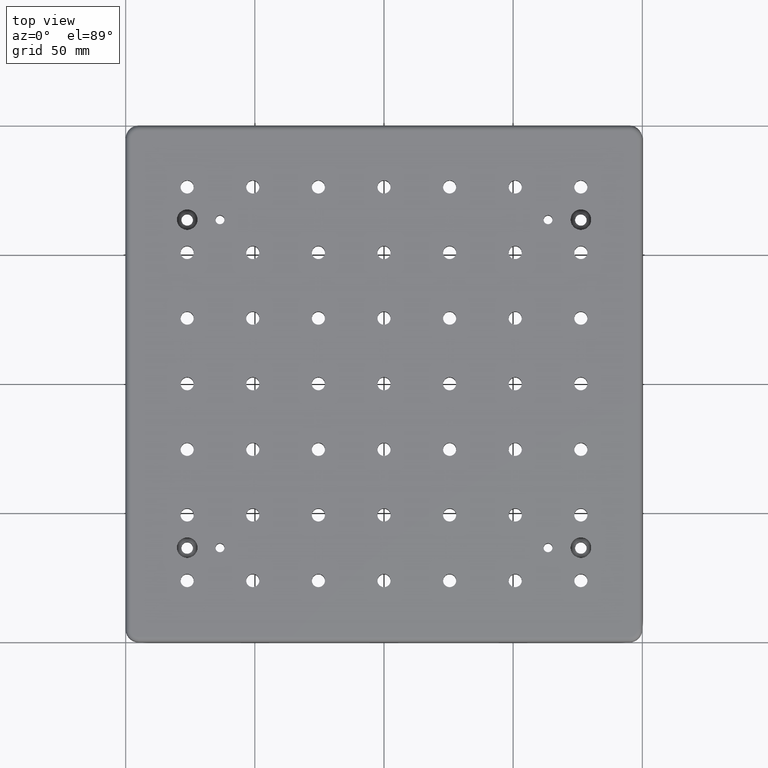
[diagram: clean part render]
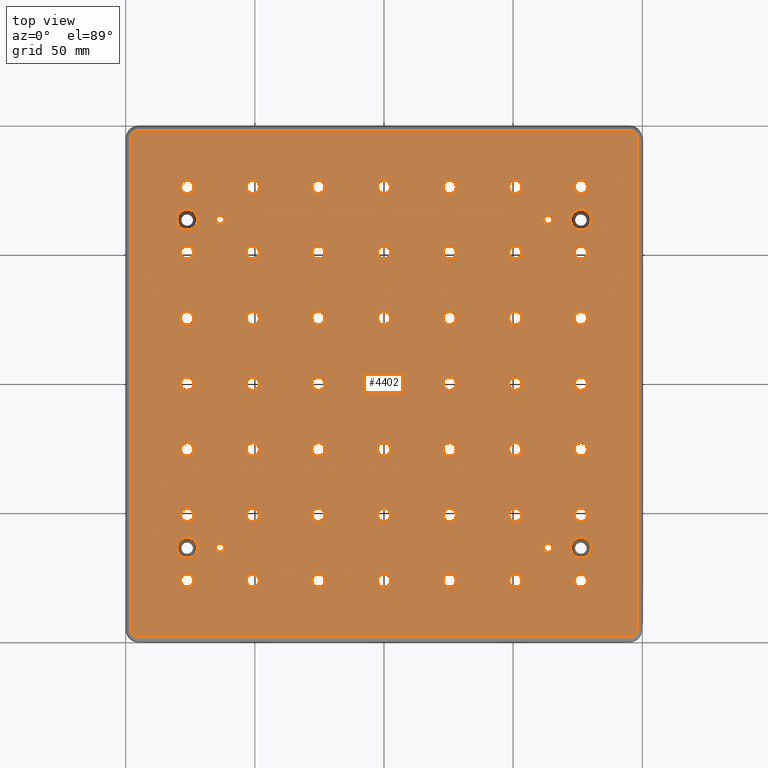
[diagram: same view with one face highlighted and labeled with its STEP entity id]
A machine part, top view. The second image highlights one B-rep face of the part: STEP entity #4402.
In plain terms, the highlighted planar face has unit normal (-0, 0, -1).
Its self-contained STEP definition (entity closure, byte-faithful):
#2 = VERTEX_POINT ( 'NONE', #2246 ) ;
#8 = DIRECTION ( 'NONE',  ( -0.0000000000000000000, -0.0000000000000000000, 1.000000000000000000 ) ) ;
#13 = CIRCLE ( 'NONE', #4924, 2.552699999999990900 ) ;
#18 = VERTEX_POINT ( 'NONE', #1866 ) ;
#20 = EDGE_LOOP ( 'NONE', ( #4512, #3429 ) ) ;
#23 = EDGE_LOOP ( 'NONE', ( #558, #4410 ) ) ;
#30 = VERTEX_POINT ( 'NONE', #5111 ) ;
#31 = DIRECTION ( 'NONE',  ( 1.000000000000000000, 0.0000000000000000000, 0.0000000000000000000 ) ) ;
#40 = ORIENTED_EDGE ( 'NONE', *, *, #3670, .F. ) ;
#42 = CARTESIAN_POINT ( 'NONE',  ( -50.80000000000003300, -5.551115123125782700E-014, 1.242685846498791000E-015 ) ) ;
#47 = DIRECTION ( 'NONE',  ( -0.0000000000000000000, -0.0000000000000000000, 1.000000000000000000 ) ) ;
#55 = VERTEX_POINT ( 'NONE', #5250 ) ;
#57 = CARTESIAN_POINT ( 'NONE',  ( 50.79999999999998300, -5.551115123125782700E-014, 1.242685846498791000E-015 ) ) ;
#65 = DIRECTION ( 'NONE',  ( -0.0000000000000000000, -0.0000000000000000000, 1.000000000000000000 ) ) ;
#68 = EDGE_CURVE ( 'NONE', #780, #1192, #5092, .T. ) ;
#69 = DIRECTION ( 'NONE',  ( 1.000000000000000000, 0.0000000000000000000, 0.0000000000000000000 ) ) ;
#74 = AXIS2_PLACEMENT_3D ( 'NONE', #5208, #4365, #1134 ) ;
#78 = DIRECTION ( 'NONE',  ( -0.0000000000000000000, -0.0000000000000000000, 1.000000000000000000 ) ) ;
#81 = CARTESIAN_POINT ( 'NONE',  ( -65.22719999999998200, -63.50000000000004300, -1.734723475976807100E-015 ) ) ;
#88 = CARTESIAN_POINT ( 'NONE',  ( -2.775557561562891400E-014, -76.20000000000004500, 1.242685846498791000E-015 ) ) ;
#89 = AXIS2_PLACEMENT_3D ( 'NONE', #1740, #3396, #2572 ) ;
#92 = EDGE_CURVE ( 'NONE', #2613, #783, #844, .T. ) ;
#93 = ORIENTED_EDGE ( 'NONE', *, *, #1133, .F. ) ;
#101 = FACE_BOUND ( 'NONE', #2204, .T. ) ;
#106 = CARTESIAN_POINT ( 'NONE',  ( -76.20000000000003100, -5.551115123125782700E-014, 1.242685846498791000E-015 ) ) ;
#107 = AXIS2_PLACEMENT_3D ( 'NONE', #2422, #4525, #1596 ) ;
#108 = FACE_BOUND ( 'NONE', #1541, .T. ) ;
#109 = CIRCLE ( 'NONE', #1860, 1.727199999999984300 ) ;
#110 = DIRECTION ( 'NONE',  ( -1.000000000000000000, 0.0000000000000000000, 0.0000000000000000000 ) ) ;
#113 = CARTESIAN_POINT ( 'NONE',  ( -73.64730000000004400, 25.39999999999994900, 1.242685846498791000E-015 ) ) ;
#117 = EDGE_CURVE ( 'NONE', #2248, #4612, #4704, .T. ) ;
#118 = CARTESIAN_POINT ( 'NONE',  ( -94.99999999999998600, -95.00000000000004300, 0.0000000000000000000 ) ) ;
#121 = VERTEX_POINT ( 'NONE', #5318 ) ;
#122 = DIRECTION ( 'NONE',  ( 1.000000000000000000, 0.0000000000000000000, 0.0000000000000000000 ) ) ;
#123 = CIRCLE ( 'NONE', #3171, 1.727199999999984300 ) ;
#124 = EDGE_CURVE ( 'NONE', #3666, #3985, #3724, .T. ) ;
#129 = DIRECTION ( 'NONE',  ( 1.000000000000000000, 0.0000000000000000000, 0.0000000000000000000 ) ) ;
#151 = VERTEX_POINT ( 'NONE', #2005 ) ;
#156 = DIRECTION ( 'NONE',  ( -0.0000000000000000000, -0.0000000000000000000, 1.000000000000000000 ) ) ;
#158 = CIRCLE ( 'NONE', #4544, 2.552699999999990900 ) ;
#174 = CARTESIAN_POINT ( 'NONE',  ( -80.20000000000000300, -63.50000000000004300, 0.0000000000000000000 ) ) ;
#179 = AXIS2_PLACEMENT_3D ( 'NONE', #2678, #1515, #3544 ) ;
#194 = EDGE_CURVE ( 'NONE', #1840, #2290, #213, .T. ) ;
#200 = AXIS2_PLACEMENT_3D ( 'NONE', #4976, #4104, #69 ) ;
#201 = CIRCLE ( 'NONE', #1310, 2.552699999999990900 ) ;
#202 = DIRECTION ( 'NONE',  ( -1.000000000000000000, 0.0000000000000000000, 0.0000000000000000000 ) ) ;
#213 = CIRCLE ( 'NONE', #971, 2.552699999999990900 ) ;
#218 = AXIS2_PLACEMENT_3D ( 'NONE', #2899, #1261, #4969 ) ;
#219 = EDGE_LOOP ( 'NONE', ( #3590, #2990 ) ) ;
#228 = DIRECTION ( 'NONE',  ( -0.0000000000000000000, -0.0000000000000000000, 1.000000000000000000 ) ) ;
#229 = DIRECTION ( 'NONE',  ( -0.0000000000000000000, -0.0000000000000000000, 1.000000000000000000 ) ) ;
#231 = FACE_BOUND ( 'NONE', #4479, .T. ) ;
#233 = AXIS2_PLACEMENT_3D ( 'NONE', #1441, #1458, #3039 ) ;
#235 = EDGE_CURVE ( 'NONE', #2186, #693, #3331, .T. ) ;
#239 = DIRECTION ( 'NONE',  ( -0.0000000000000000000, -0.0000000000000000000, -1.000000000000000000 ) ) ;
#245 = VERTEX_POINT ( 'NONE', #4465 ) ;
#246 = CARTESIAN_POINT ( 'NONE',  ( 48.24729999999999600, -5.519853564283948800E-014, 1.242685846498791000E-015 ) ) ;
#248 = CIRCLE ( 'NONE', #4282, 2.552699999999990900 ) ;
#255 = CARTESIAN_POINT ( 'NONE',  ( -25.40000000000004100, 76.19999999999993200, 1.242685846498791000E-015 ) ) ;
#260 = EDGE_CURVE ( 'NONE', #2411, #688, #710, .T. ) ;
#262 = EDGE_LOOP ( 'NONE', ( #292, #3470 ) ) ;
#268 = CARTESIAN_POINT ( 'NONE',  ( -2.552700000000046800, 76.19999999999993200, 1.242685846498791000E-015 ) ) ;
#270 = ORIENTED_EDGE ( 'NONE', *, *, #2933, .F. ) ;
#281 = VERTEX_POINT ( 'NONE', #5287 ) ;
#282 = DIRECTION ( 'NONE',  ( -0.0000000000000000000, -0.0000000000000000000, 1.000000000000000000 ) ) ;
#287 = VERTEX_POINT ( 'NONE', #2076 ) ;
#292 = ORIENTED_EDGE ( 'NONE', *, *, #2543, .F. ) ;
#293 = CARTESIAN_POINT ( 'NONE',  ( -95.00000000000001400, 94.99999999999994300, 0.0000000000000000000 ) ) ;
#294 = AXIS2_PLACEMENT_3D ( 'NONE', #2280, #5174, #122 ) ;
#298 = EDGE_CURVE ( 'NONE', #389, #5299, #4496, .T. ) ;
#299 = VERTEX_POINT ( 'NONE', #4560 ) ;
#300 = CARTESIAN_POINT ( 'NONE',  ( -80.20000000000004500, 63.49999999999995700, 0.0000000000000000000 ) ) ;
#304 = CARTESIAN_POINT ( 'NONE',  ( 76.19999999999996000, -25.40000000000004800, 1.242685846498791000E-015 ) ) ;
#308 = EDGE_CURVE ( 'NONE', #2580, #3412, #3066, .T. ) ;
#310 = CARTESIAN_POINT ( 'NONE',  ( -76.20000000000001700, -25.40000000000004800, 1.242685846498791000E-015 ) ) ;
#320 = CARTESIAN_POINT ( 'NONE',  ( 63.49999999999992900, 63.49999999999992900, -1.734723475976807100E-015 ) ) ;
#322 = ORIENTED_EDGE ( 'NONE', *, *, #1205, .F. ) ;
#326 = EDGE_LOOP ( 'NONE', ( #3641, #3150 ) ) ;
#327 = DIRECTION ( 'NONE',  ( -0.0000000000000000000, -0.0000000000000000000, 1.000000000000000000 ) ) ;
#328 = AXIS2_PLACEMENT_3D ( 'NONE', #1066, #1529, #2338 ) ;
#333 = DIRECTION ( 'NONE',  ( -0.0000000000000000000, -0.0000000000000000000, 1.000000000000000000 ) ) ;
#336 = DIRECTION ( 'NONE',  ( 1.000000000000000000, 0.0000000000000000000, 0.0000000000000000000 ) ) ;
#344 = ORIENTED_EDGE ( 'NONE', *, *, #4340, .F. ) ;
#345 = DIRECTION ( 'NONE',  ( 1.000000000000000000, 0.0000000000000000000, 0.0000000000000000000 ) ) ;
#348 = AXIS2_PLACEMENT_3D ( 'NONE', #676, #4736, #1500 ) ;
#351 = CIRCLE ( 'NONE', #3460, 2.552699999999990900 ) ;
#352 = VERTEX_POINT ( 'NONE', #843 ) ;
#358 = FACE_BOUND ( 'NONE', #20, .T. ) ;
#362 = DIRECTION ( 'NONE',  ( -1.000000000000000000, -7.304098846218138100E-017, 0.0000000000000000000 ) ) ;
#368 = ORIENTED_EDGE ( 'NONE', *, *, #4183, .F. ) ;
#371 = DIRECTION ( 'NONE',  ( 1.000000000000000000, 0.0000000000000000000, 0.0000000000000000000 ) ) ;
#379 = CIRCLE ( 'NONE', #2242, 2.552699999999990900 ) ;
#380 = VERTEX_POINT ( 'NONE', #4174 ) ;
#381 = AXIS2_PLACEMENT_3D ( 'NONE', #4540, #47, #1327 ) ;
#386 = CARTESIAN_POINT ( 'NONE',  ( 2.552699999999949600, 50.79999999999994700, 1.242685846498791000E-015 ) ) ;
#388 = EDGE_CURVE ( 'NONE', #1403, #4593, #1147, .T. ) ;
#389 = VERTEX_POINT ( 'NONE', #4207 ) ;
#395 = CARTESIAN_POINT ( 'NONE',  ( 76.19999999999996000, -5.551115123125782700E-014, 1.242685846498791000E-015 ) ) ;
#396 = ORIENTED_EDGE ( 'NONE', *, *, #194, .F. ) ;
#402 = CARTESIAN_POINT ( 'NONE',  ( 25.39999999999996300, -5.551115123125782700E-014, 1.242685846498791000E-015 ) ) ;
#415 = AXIS2_PLACEMENT_3D ( 'NONE', #1785, #1415, #2200 ) ;
#426 = CIRCLE ( 'NONE', #5093, 3.000000000000002700 ) ;
#431 = AXIS2_PLACEMENT_3D ( 'NONE', #2652, #229, #4348 ) ;
#444 = CIRCLE ( 'NONE', #3551, 2.552699999999990900 ) ;
#445 = DIRECTION ( 'NONE',  ( -0.0000000000000000000, -0.0000000000000000000, 1.000000000000000000 ) ) ;
#447 = EDGE_LOOP ( 'NONE', ( #1941, #3988 ) ) ;
#453 = AXIS2_PLACEMENT_3D ( 'NONE', #519, #1325, #1732 ) ;
#456 = CARTESIAN_POINT ( 'NONE',  ( -48.24730000000003800, -5.551115123125782700E-014, 1.242685846498791000E-015 ) ) ;
#458 = CIRCLE ( 'NONE', #1975, 2.552699999999990900 ) ;
#460 = CARTESIAN_POINT ( 'NONE',  ( 50.79999999999998300, -50.80000000000004700, 1.242685846498791000E-015 ) ) ;
#468 = CARTESIAN_POINT ( 'NONE',  ( 25.39999999999996300, 25.39999999999994200, 1.242685846498791000E-015 ) ) ;
#484 = EDGE_CURVE ( 'NONE', #1757, #2656, #4106, .T. ) ;
#485 = FACE_BOUND ( 'NONE', #3536, .T. ) ;
#486 = ORIENTED_EDGE ( 'NONE', *, *, #1463, .F. ) ;
#488 = CARTESIAN_POINT ( 'NONE',  ( -27.95270000000001100, -76.20000000000004500, 1.242685846498791000E-015 ) ) ;
#495 = DIRECTION ( 'NONE',  ( -0.0000000000000000000, -0.0000000000000000000, 1.000000000000000000 ) ) ;
#498 = CARTESIAN_POINT ( 'NONE',  ( -50.80000000000004000, 25.39999999999994200, 1.242685846498791000E-015 ) ) ;
#500 = CARTESIAN_POINT ( 'NONE',  ( 25.39999999999997000, -76.20000000000004500, 1.242685846498791000E-015 ) ) ;
#507 = DIRECTION ( 'NONE',  ( 1.000000000000000000, 0.0000000000000000000, 0.0000000000000000000 ) ) ;
#510 = CIRCLE ( 'NONE', #1723, 4.000000000000003600 ) ;
#511 = ORIENTED_EDGE ( 'NONE', *, *, #5023, .F. ) ;
#515 = ORIENTED_EDGE ( 'NONE', *, *, #4035, .F. ) ;
#519 = CARTESIAN_POINT ( 'NONE',  ( -25.40000000000003800, 25.39999999999994200, 1.242685846498791000E-015 ) ) ;
#522 = ORIENTED_EDGE ( 'NONE', *, *, #2906, .F. ) ;
#524 = DIRECTION ( 'NONE',  ( -1.000000000000000000, 0.0000000000000000000, 0.0000000000000000000 ) ) ;
#535 = AXIS2_PLACEMENT_3D ( 'NONE', #4426, #5189, #719 ) ;
#536 = ORIENTED_EDGE ( 'NONE', *, *, #117, .F. ) ;
#545 = EDGE_CURVE ( 'NONE', #1550, #1105, #2737, .T. ) ;
#549 = CARTESIAN_POINT ( 'NONE',  ( 50.79999999999998300, -50.80000000000004700, 1.242685846498791000E-015 ) ) ;
#551 = ORIENTED_EDGE ( 'NONE', *, *, #4791, .F. ) ;
#554 = CIRCLE ( 'NONE', #1262, 2.552699999999990900 ) ;
#558 = ORIENTED_EDGE ( 'NONE', *, *, #3293, .F. ) ;
#564 = EDGE_CURVE ( 'NONE', #3985, #3666, #4233, .T. ) ;
#565 = CARTESIAN_POINT ( 'NONE',  ( -76.20000000000000300, -63.50000000000004300, 0.0000000000000000000 ) ) ;
#567 = ORIENTED_EDGE ( 'NONE', *, *, #2299, .F. ) ;
#574 = CARTESIAN_POINT ( 'NONE',  ( 53.35269999999997700, -25.40000000000004800, 1.242685846498791000E-015 ) ) ;
#585 = DIRECTION ( 'NONE',  ( -0.0000000000000000000, -0.0000000000000000000, 1.000000000000000000 ) ) ;
#591 = CARTESIAN_POINT ( 'NONE',  ( 80.19999999999993200, 63.49999999999992900, 0.0000000000000000000 ) ) ;
#593 = EDGE_CURVE ( 'NONE', #1934, #4696, #1652, .T. ) ;
#596 = VERTEX_POINT ( 'NONE', #1031 ) ;
#604 = AXIS2_PLACEMENT_3D ( 'NONE', #4430, #5234, #1881 ) ;
#606 = EDGE_CURVE ( 'NONE', #3246, #658, #13, .T. ) ;
#609 = ORIENTED_EDGE ( 'NONE', *, *, #2235, .F. ) ;
#612 = FACE_BOUND ( 'NONE', #4516, .T. ) ;
#613 = VERTEX_POINT ( 'NONE', #2238 ) ;
#616 = CIRCLE ( 'NONE', #381, 2.552699999999990900 ) ;
#618 = DIRECTION ( 'NONE',  ( 1.000000000000000000, 0.0000000000000000000, 0.0000000000000000000 ) ) ;
#619 = FACE_BOUND ( 'NONE', #2541, .T. ) ;
#623 = ORIENTED_EDGE ( 'NONE', *, *, #1265, .F. ) ;
#624 = CARTESIAN_POINT ( 'NONE',  ( 22.84729999999997200, -5.519853564283948800E-014, 1.242685846498791000E-015 ) ) ;
#628 = DIRECTION ( 'NONE',  ( -0.0000000000000000000, -0.0000000000000000000, 1.000000000000000000 ) ) ;
#632 = AXIS2_PLACEMENT_3D ( 'NONE', #1638, #5309, #4508 ) ;
#637 = ORIENTED_EDGE ( 'NONE', *, *, #1933, .F. ) ;
#639 = CIRCLE ( 'NONE', #2382, 2.552699999999990900 ) ;
#643 = CARTESIAN_POINT ( 'NONE',  ( -25.40000000000003100, -25.40000000000004800, 1.242685846498791000E-015 ) ) ;
#646 = CIRCLE ( 'NONE', #5002, 2.552699999999990900 ) ;
#651 = VERTEX_POINT ( 'NONE', #4060 ) ;
#653 = AXIS2_PLACEMENT_3D ( 'NONE', #2034, #4519, #1244 ) ;
#655 = CARTESIAN_POINT ( 'NONE',  ( -4.163336342344337000E-014, -25.40000000000004800, 1.242685846498791000E-015 ) ) ;
#658 = VERTEX_POINT ( 'NONE', #4839 ) ;
#659 = VERTEX_POINT ( 'NONE', #2772 ) ;
#670 = EDGE_CURVE ( 'NONE', #3392, #1333, #5204, .T. ) ;
#676 = CARTESIAN_POINT ( 'NONE',  ( -4.163336342344337000E-014, -5.551115123125782700E-014, 1.242685846498791000E-015 ) ) ;
#688 = VERTEX_POINT ( 'NONE', #4077 ) ;
#693 = VERTEX_POINT ( 'NONE', #4495 ) ;
#694 = CARTESIAN_POINT ( 'NONE',  ( 76.19999999999996000, -50.80000000000004700, 1.242685846498791000E-015 ) ) ;
#697 = ORIENTED_EDGE ( 'NONE', *, *, #3189, .F. ) ;
#698 = EDGE_CURVE ( 'NONE', #1333, #3392, #458, .T. ) ;
#701 = CIRCLE ( 'NONE', #1646, 4.000000000000003600 ) ;
#702 = DIRECTION ( 'NONE',  ( 1.000000000000000000, 0.0000000000000000000, 0.0000000000000000000 ) ) ;
#705 = DIRECTION ( 'NONE',  ( -0.0000000000000000000, -0.0000000000000000000, 1.000000000000000000 ) ) ;
#707 = CARTESIAN_POINT ( 'NONE',  ( 25.39999999999994200, 76.19999999999993200, 1.242685846498791000E-015 ) ) ;
#710 = CIRCLE ( 'NONE', #3254, 2.552699999999990900 ) ;
#717 = ORIENTED_EDGE ( 'NONE', *, *, #2884, .F. ) ;
#719 = DIRECTION ( 'NONE',  ( 1.000000000000000000, 0.0000000000000000000, 0.0000000000000000000 ) ) ;
#721 = ORIENTED_EDGE ( 'NONE', *, *, #2230, .F. ) ;
#722 = CARTESIAN_POINT ( 'NONE',  ( -50.80000000000002600, -50.80000000000004700, 1.242685846498791000E-015 ) ) ;
#733 = FACE_BOUND ( 'NONE', #3068, .T. ) ;
#737 = CIRCLE ( 'NONE', #2755, 2.552699999999990900 ) ;
#739 = FACE_BOUND ( 'NONE', #4219, .T. ) ;
#743 = CARTESIAN_POINT ( 'NONE',  ( -50.80000000000001800, -76.20000000000004500, 1.242685846498791000E-015 ) ) ;
#745 = CARTESIAN_POINT ( 'NONE',  ( 27.95269999999995400, -25.40000000000004800, 1.242685846498791000E-015 ) ) ;
#747 = AXIS2_PLACEMENT_3D ( 'NONE', #2291, #1075, #2274 ) ;
#748 = VERTEX_POINT ( 'NONE', #3275 ) ;
#758 = ORIENTED_EDGE ( 'NONE', *, *, #2370, .F. ) ;
#763 = CARTESIAN_POINT ( 'NONE',  ( 65.22719999999991100, 63.49999999999992900, -1.734723475976807100E-015 ) ) ;
#765 = DIRECTION ( 'NONE',  ( 1.000000000000000000, 0.0000000000000000000, 0.0000000000000000000 ) ) ;
#780 = VERTEX_POINT ( 'NONE', #2892 ) ;
#783 = VERTEX_POINT ( 'NONE', #3295 ) ;
#784 = DIRECTION ( 'NONE',  ( 1.000000000000000000, 0.0000000000000000000, 0.0000000000000000000 ) ) ;
#785 = AXIS2_PLACEMENT_3D ( 'NONE', #4394, #282, #4345 ) ;
#797 = ORIENTED_EDGE ( 'NONE', *, *, #4428, .F. ) ;
#798 = DIRECTION ( 'NONE',  ( 1.000000000000000000, 0.0000000000000000000, 0.0000000000000000000 ) ) ;
#810 = EDGE_LOOP ( 'NONE', ( #3078, #5038 ) ) ;
#812 = EDGE_CURVE ( 'NONE', #613, #846, #4100, .T. ) ;
#818 = VERTEX_POINT ( 'NONE', #2526 ) ;
#825 = DIRECTION ( 'NONE',  ( -0.0000000000000000000, -0.0000000000000000000, 1.000000000000000000 ) ) ;
#826 = CARTESIAN_POINT ( 'NONE',  ( -5.551115123125782700E-014, 76.19999999999993200, 1.242685846498791000E-015 ) ) ;
#832 = CIRCLE ( 'NONE', #2124, 2.552699999999990900 ) ;
#841 = EDGE_CURVE ( 'NONE', #1643, #2886, #4561, .T. ) ;
#843 = CARTESIAN_POINT ( 'NONE',  ( 73.64729999999997300, -50.80000000000004700, 1.242685846498791000E-015 ) ) ;
#844 = CIRCLE ( 'NONE', #2434, 2.552699999999990900 ) ;
#846 = VERTEX_POINT ( 'NONE', #3003 ) ;
#847 = EDGE_LOOP ( 'NONE', ( #3598, #4255 ) ) ;
#850 = ORIENTED_EDGE ( 'NONE', *, *, #4052, .T. ) ;
#852 = ORIENTED_EDGE ( 'NONE', *, *, #1578, .F. ) ;
#855 = DIRECTION ( 'NONE',  ( -0.0000000000000000000, -0.0000000000000000000, 1.000000000000000000 ) ) ;
#857 = CIRCLE ( 'NONE', #3007, 2.552699999999990900 ) ;
#858 = ORIENTED_EDGE ( 'NONE', *, *, #1904, .F. ) ;
#872 = FACE_BOUND ( 'NONE', #4988, .T. ) ;
#879 = VERTEX_POINT ( 'NONE', #113 ) ;
#882 = EDGE_CURVE ( 'NONE', #2908, #3402, #1331, .T. ) ;
#892 = CARTESIAN_POINT ( 'NONE',  ( -76.20000000000003100, 25.39999999999994900, 1.242685846498791000E-015 ) ) ;
#893 = EDGE_CURVE ( 'NONE', #4691, #287, #1586, .T. ) ;
#894 = CIRCLE ( 'NONE', #1378, 2.552699999999990900 ) ;
#900 = CIRCLE ( 'NONE', #2843, 2.552699999999990900 ) ;
#907 = EDGE_CURVE ( 'NONE', #2, #2433, #832, .T. ) ;
#908 = VERTEX_POINT ( 'NONE', #2179 ) ;
#909 = DIRECTION ( 'NONE',  ( -0.0000000000000000000, -0.0000000000000000000, 1.000000000000000000 ) ) ;
#929 = FACE_BOUND ( 'NONE', #5153, .T. ) ;
#931 = EDGE_CURVE ( 'NONE', #1808, #4350, #2419, .T. ) ;
#937 = CARTESIAN_POINT ( 'NONE',  ( 2.552699999999949600, 25.39999999999994200, 1.242685846498791000E-015 ) ) ;
#942 = CARTESIAN_POINT ( 'NONE',  ( -50.80000000000004000, 25.39999999999994200, 1.242685846498791000E-015 ) ) ;
#944 = DIRECTION ( 'NONE',  ( 1.000000000000000000, 0.0000000000000000000, 0.0000000000000000000 ) ) ;
#945 = EDGE_CURVE ( 'NONE', #2656, #1757, #646, .T. ) ;
#949 = DIRECTION ( 'NONE',  ( 1.000000000000000000, 0.0000000000000000000, 0.0000000000000000000 ) ) ;
#951 = CIRCLE ( 'NONE', #4741, 2.552699999999990900 ) ;
#957 = VERTEX_POINT ( 'NONE', #2250 ) ;
#961 = DIRECTION ( 'NONE',  ( 0.0000000000000000000, 0.0000000000000000000, 1.000000000000000000 ) ) ;
#963 = ORIENTED_EDGE ( 'NONE', *, *, #298, .F. ) ;
#971 = AXIS2_PLACEMENT_3D ( 'NONE', #826, #3263, #371 ) ;
#973 = EDGE_CURVE ( 'NONE', #4350, #1808, #4352, .T. ) ;
#978 = ORIENTED_EDGE ( 'NONE', *, *, #1517, .F. ) ;
#981 = CIRCLE ( 'NONE', #1629, 1.727199999999984300 ) ;
#983 = CARTESIAN_POINT ( 'NONE',  ( -22.84730000000004000, -25.40000000000004800, 1.242685846498791000E-015 ) ) ;
#986 = FACE_BOUND ( 'NONE', #219, .T. ) ;
#992 = DIRECTION ( 'NONE',  ( -0.0000000000000000000, -0.0000000000000000000, 1.000000000000000000 ) ) ;
#993 = CARTESIAN_POINT ( 'NONE',  ( 27.95269999999996100, -76.20000000000004500, 1.242685846498791000E-015 ) ) ;
#995 = AXIS2_PLACEMENT_3D ( 'NONE', #4325, #1026, #5118 ) ;
#998 = EDGE_CURVE ( 'NONE', #4753, #5076, #3326, .T. ) ;
#1010 = EDGE_CURVE ( 'NONE', #1918, #3018, #5078, .T. ) ;
#1012 = ORIENTED_EDGE ( 'NONE', *, *, #841, .F. ) ;
#1026 = DIRECTION ( 'NONE',  ( -0.0000000000000000000, -0.0000000000000000000, 1.000000000000000000 ) ) ;
#1031 = CARTESIAN_POINT ( 'NONE',  ( -78.75270000000001900, -5.519853564283948800E-014, 1.242685846498791000E-015 ) ) ;
#1034 = ORIENTED_EDGE ( 'NONE', *, *, #1847, .F. ) ;
#1040 = EDGE_CURVE ( 'NONE', #5167, #957, #3508, .T. ) ;
#1044 = DIRECTION ( 'NONE',  ( 1.000000000000000000, 0.0000000000000000000, 0.0000000000000000000 ) ) ;
#1045 = FACE_BOUND ( 'NONE', #3791, .T. ) ;
#1048 = FACE_BOUND ( 'NONE', #2249, .T. ) ;
#1057 = VERTEX_POINT ( 'NONE', #300 ) ;
#1058 = CARTESIAN_POINT ( 'NONE',  ( -4.163336342344337000E-014, -5.551115123125782700E-014, 1.242685846498791000E-015 ) ) ;
#1066 = CARTESIAN_POINT ( 'NONE',  ( -76.20000000000004500, 76.19999999999993200, 1.242685846498791000E-015 ) ) ;
#1067 = CIRCLE ( 'NONE', #2277, 4.000000000000003600 ) ;
#1070 = VERTEX_POINT ( 'NONE', #1935 ) ;
#1073 = CIRCLE ( 'NONE', #2227, 2.552699999999990900 ) ;
#1075 = DIRECTION ( 'NONE',  ( -0.0000000000000000000, -0.0000000000000000000, 1.000000000000000000 ) ) ;
#1079 = ORIENTED_EDGE ( 'NONE', *, *, #4636, .F. ) ;
#1083 = AXIS2_PLACEMENT_3D ( 'NONE', #4927, #4986, #4094 ) ;
#1085 = DIRECTION ( 'NONE',  ( -0.0000000000000000000, -0.0000000000000000000, 1.000000000000000000 ) ) ;
#1086 = EDGE_CURVE ( 'NONE', #3018, #1918, #900, .T. ) ;
#1088 = CARTESIAN_POINT ( 'NONE',  ( -95.00000000000000000, 97.99999999999994300, 0.0000000000000000000 ) ) ;
#1103 = EDGE_CURVE ( 'NONE', #596, #380, #2859, .T. ) ;
#1105 = VERTEX_POINT ( 'NONE', #5213 ) ;
#1106 = DIRECTION ( 'NONE',  ( 1.000000000000000000, 0.0000000000000000000, 0.0000000000000000000 ) ) ;
#1110 = CIRCLE ( 'NONE', #3134, 2.552699999999990900 ) ;
#1111 = DIRECTION ( 'NONE',  ( -0.0000000000000000000, -0.0000000000000000000, 1.000000000000000000 ) ) ;
#1133 = EDGE_CURVE ( 'NONE', #818, #651, #1073, .T. ) ;
#1134 = DIRECTION ( 'NONE',  ( 1.000000000000000000, 0.0000000000000000000, 0.0000000000000000000 ) ) ;
#1147 = CIRCLE ( 'NONE', #89, 2.552699999999990900 ) ;
#1150 = ORIENTED_EDGE ( 'NONE', *, *, #4554, .T. ) ;
#1153 = CARTESIAN_POINT ( 'NONE',  ( 76.19999999999997400, -63.50000000000004300, 0.0000000000000000000 ) ) ;
#1161 = ORIENTED_EDGE ( 'NONE', *, *, #4395, .F. ) ;
#1162 = EDGE_LOOP ( 'NONE', ( #5008, #3654 ) ) ;
#1170 = CARTESIAN_POINT ( 'NONE',  ( -50.80000000000003300, -5.551115123125782700E-014, 1.242685846498791000E-015 ) ) ;
#1173 = FACE_BOUND ( 'NONE', #2608, .T. ) ;
#1175 = CARTESIAN_POINT ( 'NONE',  ( 98.00000000000000000, 94.99999999999994300, 0.0000000000000000000 ) ) ;
#1183 = AXIS2_PLACEMENT_3D ( 'NONE', #3065, #1841, #2680 ) ;
#1191 = CARTESIAN_POINT ( 'NONE',  ( -76.20000000000001700, -25.40000000000004800, 1.242685846498791000E-015 ) ) ;
#1192 = VERTEX_POINT ( 'NONE', #2075 ) ;
#1196 = DIRECTION ( 'NONE',  ( -0.0000000000000000000, -0.0000000000000000000, 1.000000000000000000 ) ) ;
#1197 = EDGE_LOOP ( 'NONE', ( #721, #4308 ) ) ;
#1205 = EDGE_CURVE ( 'NONE', #908, #151, #2992, .T. ) ;
#1214 = EDGE_LOOP ( 'NONE', ( #4122, #4925 ) ) ;
#1217 = EDGE_LOOP ( 'NONE', ( #322, #4888 ) ) ;
#1218 = PLANE ( 'NONE',  #4017 ) ;
#1223 = DIRECTION ( 'NONE',  ( 1.000000000000000000, 0.0000000000000000000, 0.0000000000000000000 ) ) ;
#1232 = CIRCLE ( 'NONE', #4780, 3.000000000000002700 ) ;
#1237 = FACE_BOUND ( 'NONE', #2744, .T. ) ;
#1241 = EDGE_LOOP ( 'NONE', ( #486, #5032 ) ) ;
#1244 = DIRECTION ( 'NONE',  ( 1.000000000000000000, 0.0000000000000000000, 0.0000000000000000000 ) ) ;
#1245 = DIRECTION ( 'NONE',  ( 1.000000000000000000, 0.0000000000000000000, 0.0000000000000000000 ) ) ;
#1246 = CARTESIAN_POINT ( 'NONE',  ( -2.552700000000032600, -5.519853564283948800E-014, 1.242685846498791000E-015 ) ) ;
#1250 = CARTESIAN_POINT ( 'NONE',  ( -53.35270000000002000, -25.40000000000004800, 1.242685846498791000E-015 ) ) ;
#1252 = DIRECTION ( 'NONE',  ( 1.000000000000000000, 0.0000000000000000000, 0.0000000000000000000 ) ) ;
#1258 = CARTESIAN_POINT ( 'NONE',  ( 76.19999999999996000, -76.20000000000004500, 1.242685846498791000E-015 ) ) ;
#1261 = DIRECTION ( 'NONE',  ( -0.0000000000000000000, -0.0000000000000000000, 1.000000000000000000 ) ) ;
#1262 = AXIS2_PLACEMENT_3D ( 'NONE', #468, #4133, #3296 ) ;
#1264 = CIRCLE ( 'NONE', #4772, 2.552699999999990900 ) ;
#1265 = EDGE_CURVE ( 'NONE', #3412, #2580, #1839, .T. ) ;
#1267 = DIRECTION ( 'NONE',  ( -0.0000000000000000000, -0.0000000000000000000, 1.000000000000000000 ) ) ;
#1272 = CIRCLE ( 'NONE', #4977, 2.552699999999990900 ) ;
#1273 = VERTEX_POINT ( 'NONE', #1479 ) ;
#1286 = CARTESIAN_POINT ( 'NONE',  ( -53.35270000000002700, -5.519853564283948800E-014, 1.242685846498791000E-015 ) ) ;
#1291 = ORIENTED_EDGE ( 'NONE', *, *, #2674, .F. ) ;
#1296 = EDGE_LOOP ( 'NONE', ( #1423, #2888 ) ) ;
#1303 = CIRCLE ( 'NONE', #2001, 3.000000000000002700 ) ;
#1304 = CARTESIAN_POINT ( 'NONE',  ( -76.20000000000004500, 63.49999999999995700, 0.0000000000000000000 ) ) ;
#1305 = FACE_BOUND ( 'NONE', #4594, .T. ) ;
#1307 = DIRECTION ( 'NONE',  ( 1.000000000000000000, 0.0000000000000000000, 0.0000000000000000000 ) ) ;
#1309 = ORIENTED_EDGE ( 'NONE', *, *, #2736, .F. ) ;
#1310 = AXIS2_PLACEMENT_3D ( 'NONE', #743, #3597, #1989 ) ;
#1320 = VERTEX_POINT ( 'NONE', #3106 ) ;
#1325 = DIRECTION ( 'NONE',  ( -0.0000000000000000000, -0.0000000000000000000, 1.000000000000000000 ) ) ;
#1327 = DIRECTION ( 'NONE',  ( 1.000000000000000000, 0.0000000000000000000, 0.0000000000000000000 ) ) ;
#1329 = EDGE_LOOP ( 'NONE', ( #2018, #3145 ) ) ;
#1331 = CIRCLE ( 'NONE', #2017, 2.552699999999990900 ) ;
#1332 = DIRECTION ( 'NONE',  ( 1.000000000000000000, 0.0000000000000000000, 0.0000000000000000000 ) ) ;
#1333 = VERTEX_POINT ( 'NONE', #1869 ) ;
#1338 = EDGE_CURVE ( 'NONE', #1070, #3035, #201, .T. ) ;
#1352 = AXIS2_PLACEMENT_3D ( 'NONE', #3951, #3097, #2258 ) ;
#1354 = ORIENTED_EDGE ( 'NONE', *, *, #945, .F. ) ;
#1356 = ORIENTED_EDGE ( 'NONE', *, *, #973, .T. ) ;
#1358 = CIRCLE ( 'NONE', #632, 2.552699999999990900 ) ;
#1361 = DIRECTION ( 'NONE',  ( -0.0000000000000000000, -0.0000000000000000000, 1.000000000000000000 ) ) ;
#1365 = CIRCLE ( 'NONE', #2829, 2.552699999999990900 ) ;
#1366 = CIRCLE ( 'NONE', #74, 2.552699999999990900 ) ;
#1372 = CARTESIAN_POINT ( 'NONE',  ( 76.19999999999993200, 76.19999999999993200, 1.242685846498791000E-015 ) ) ;
#1378 = AXIS2_PLACEMENT_3D ( 'NONE', #498, #2498, #2119 ) ;
#1379 = EDGE_LOOP ( 'NONE', ( #1999, #515 ) ) ;
#1385 = VERTEX_POINT ( 'NONE', #4019 ) ;
#1387 = CIRCLE ( 'NONE', #3202, 2.552699999999990900 ) ;
#1395 = DIRECTION ( 'NONE',  ( 1.000000000000000000, 0.0000000000000000000, 0.0000000000000000000 ) ) ;
#1396 = DIRECTION ( 'NONE',  ( -1.000000000000000000, 0.0000000000000000000, 0.0000000000000000000 ) ) ;
#1403 = VERTEX_POINT ( 'NONE', #2375 ) ;
#1415 = DIRECTION ( 'NONE',  ( -0.0000000000000000000, -0.0000000000000000000, 1.000000000000000000 ) ) ;
#1416 = CARTESIAN_POINT ( 'NONE',  ( -22.84730000000002900, -76.20000000000004500, 1.242685846498791000E-015 ) ) ;
#1420 = ORIENTED_EDGE ( 'NONE', *, *, #2705, .F. ) ;
#1423 = ORIENTED_EDGE ( 'NONE', *, *, #3630, .F. ) ;
#1431 = FACE_BOUND ( 'NONE', #2509, .T. ) ;
#1441 = CARTESIAN_POINT ( 'NONE',  ( -4.163336342344337000E-014, 25.39999999999994200, 1.242685846498791000E-015 ) ) ;
#1447 = CARTESIAN_POINT ( 'NONE',  ( -2.552700000000018800, -50.80000000000004700, 1.242685846498791000E-015 ) ) ;
#1456 = AXIS2_PLACEMENT_3D ( 'NONE', #310, #4335, #4758 ) ;
#1458 = DIRECTION ( 'NONE',  ( -0.0000000000000000000, -0.0000000000000000000, 1.000000000000000000 ) ) ;
#1462 = CARTESIAN_POINT ( 'NONE',  ( -27.95270000000002900, -5.519853564283948800E-014, 1.242685846498791000E-015 ) ) ;
#1463 = EDGE_CURVE ( 'NONE', #1273, #1057, #701, .T. ) ;
#1472 = AXIS2_PLACEMENT_3D ( 'NONE', #2269, #4342, #1849 ) ;
#1479 = CARTESIAN_POINT ( 'NONE',  ( -72.20000000000004500, 63.49999999999995700, 0.0000000000000000000 ) ) ;
#1486 = DIRECTION ( 'NONE',  ( 1.000000000000000000, 0.0000000000000000000, 0.0000000000000000000 ) ) ;
#1498 = DIRECTION ( 'NONE',  ( 1.000000000000000000, 0.0000000000000000000, 0.0000000000000000000 ) ) ;
#1500 = DIRECTION ( 'NONE',  ( 1.000000000000000000, 0.0000000000000000000, 0.0000000000000000000 ) ) ;
#1504 = CARTESIAN_POINT ( 'NONE',  ( -50.80000000000004000, 50.79999999999994700, 1.242685846498791000E-015 ) ) ;
#1507 = ORIENTED_EDGE ( 'NONE', *, *, #4808, .F. ) ;
#1508 = EDGE_CURVE ( 'NONE', #5299, #389, #4814, .T. ) ;
#1512 = CARTESIAN_POINT ( 'NONE',  ( -2.775557561562891400E-014, -50.80000000000004700, 1.242685846498791000E-015 ) ) ;
#1514 = VECTOR ( 'NONE', #3324, 1000.000000000000000 ) ;
#1515 = DIRECTION ( 'NONE',  ( -0.0000000000000000000, -0.0000000000000000000, 1.000000000000000000 ) ) ;
#1516 = ORIENTED_EDGE ( 'NONE', *, *, #2405, .F. ) ;
#1517 = EDGE_CURVE ( 'NONE', #2886, #1643, #894, .T. ) ;
#1523 = DIRECTION ( 'NONE',  ( -0.0000000000000000000, -0.0000000000000000000, 1.000000000000000000 ) ) ;
#1524 = CARTESIAN_POINT ( 'NONE',  ( -22.84730000000004700, 25.39999999999994200, 1.242685846498791000E-015 ) ) ;
#1529 = DIRECTION ( 'NONE',  ( -0.0000000000000000000, -0.0000000000000000000, 1.000000000000000000 ) ) ;
#1535 = EDGE_LOOP ( 'NONE', ( #1012, #978 ) ) ;
#1536 = CARTESIAN_POINT ( 'NONE',  ( -78.75270000000000400, -25.40000000000004800, 1.242685846498791000E-015 ) ) ;
#1537 = EDGE_CURVE ( 'NONE', #380, #596, #4562, .T. ) ;
#1538 = VERTEX_POINT ( 'NONE', #1250 ) ;
#1541 = EDGE_LOOP ( 'NONE', ( #758, #270 ) ) ;
#1549 = FACE_BOUND ( 'NONE', #1197, .T. ) ;
#1550 = VERTEX_POINT ( 'NONE', #2064 ) ;
#1552 = DIRECTION ( 'NONE',  ( -0.0000000000000000000, -0.0000000000000000000, 1.000000000000000000 ) ) ;
#1556 = FACE_BOUND ( 'NONE', #3279, .T. ) ;
#1561 = AXIS2_PLACEMENT_3D ( 'NONE', #2148, #4656, #3792 ) ;
#1564 = CARTESIAN_POINT ( 'NONE',  ( 78.75269999999994800, -76.20000000000004500, 1.242685846498791000E-015 ) ) ;
#1566 = EDGE_CURVE ( 'NONE', #3495, #1848, #5006, .T. ) ;
#1578 = EDGE_CURVE ( 'NONE', #3945, #2400, #3453, .T. ) ;
#1586 = CIRCLE ( 'NONE', #3989, 2.552699999999990900 ) ;
#1591 = ORIENTED_EDGE ( 'NONE', *, *, #484, .F. ) ;
#1596 = DIRECTION ( 'NONE',  ( 1.000000000000000000, 0.0000000000000000000, 0.0000000000000000000 ) ) ;
#1600 = EDGE_LOOP ( 'NONE', ( #93, #368 ) ) ;
#1604 = AXIS2_PLACEMENT_3D ( 'NONE', #4542, #65, #4973 ) ;
#1607 = VERTEX_POINT ( 'NONE', #4230 ) ;
#1611 = FACE_BOUND ( 'NONE', #1379, .T. ) ;
#1615 = EDGE_CURVE ( 'NONE', #3085, #2125, #2349, .T. ) ;
#1625 = DIRECTION ( 'NONE',  ( -0.0000000000000000000, 0.0000000000000000000, -1.000000000000000000 ) ) ;
#1629 = AXIS2_PLACEMENT_3D ( 'NONE', #2217, #239, #1396 ) ;
#1638 = CARTESIAN_POINT ( 'NONE',  ( -25.40000000000003100, -50.80000000000004700, 1.242685846498791000E-015 ) ) ;
#1643 = VERTEX_POINT ( 'NONE', #2155 ) ;
#1644 = DIRECTION ( 'NONE',  ( 1.000000000000000000, 0.0000000000000000000, 0.0000000000000000000 ) ) ;
#1646 = AXIS2_PLACEMENT_3D ( 'NONE', #1304, #2537, #4607 ) ;
#1652 = CIRCLE ( 'NONE', #3643, 2.552699999999990900 ) ;
#1653 = EDGE_LOOP ( 'NONE', ( #1719, #3376 ) ) ;
#1655 = CARTESIAN_POINT ( 'NONE',  ( 95.00000000000000000, 94.99999999999995700, 0.0000000000000000000 ) ) ;
#1675 = DIRECTION ( 'NONE',  ( -0.0000000000000000000, -0.0000000000000000000, 1.000000000000000000 ) ) ;
#1684 = VECTOR ( 'NONE', #362, 1000.000000000000000 ) ;
#1687 = CARTESIAN_POINT ( 'NONE',  ( 27.95269999999995400, -5.551115123125782700E-014, 1.242685846498791000E-015 ) ) ;
#1688 = VERTEX_POINT ( 'NONE', #1744 ) ;
#1693 = DIRECTION ( 'NONE',  ( -0.0000000000000000000, -0.0000000000000000000, 1.000000000000000000 ) ) ;
#1694 = DIRECTION ( 'NONE',  ( -7.304098846218138100E-017, 1.000000000000000000, 0.0000000000000000000 ) ) ;
#1695 = VERTEX_POINT ( 'NONE', #246 ) ;
#1697 = AXIS2_PLACEMENT_3D ( 'NONE', #4203, #909, #3789 ) ;
#1699 = DIRECTION ( 'NONE',  ( 1.000000000000000000, 0.0000000000000000000, 0.0000000000000000000 ) ) ;
#1719 = ORIENTED_EDGE ( 'NONE', *, *, #3755, .F. ) ;
#1720 = CARTESIAN_POINT ( 'NONE',  ( 94.99999999999998600, -98.00000000000004300, 0.0000000000000000000 ) ) ;
#1723 = AXIS2_PLACEMENT_3D ( 'NONE', #2030, #4912, #2401 ) ;
#1729 = ORIENTED_EDGE ( 'NONE', *, *, #5216, .F. ) ;
#1731 = CARTESIAN_POINT ( 'NONE',  ( 76.19999999999996000, -25.40000000000004800, 1.242685846498791000E-015 ) ) ;
#1732 = DIRECTION ( 'NONE',  ( 1.000000000000000000, 0.0000000000000000000, 0.0000000000000000000 ) ) ;
#1740 = CARTESIAN_POINT ( 'NONE',  ( 25.39999999999997000, -76.20000000000004500, 1.242685846498791000E-015 ) ) ;
#1742 = CARTESIAN_POINT ( 'NONE',  ( -53.35270000000002700, 50.79999999999994700, 1.242685846498791000E-015 ) ) ;
#1744 = CARTESIAN_POINT ( 'NONE',  ( 73.64729999999997300, -76.20000000000004500, 1.242685846498791000E-015 ) ) ;
#1745 = EDGE_CURVE ( 'NONE', #1688, #1859, #3505, .T. ) ;
#1746 = FACE_BOUND ( 'NONE', #1329, .T. ) ;
#1753 = DIRECTION ( 'NONE',  ( -0.0000000000000000000, -0.0000000000000000000, 1.000000000000000000 ) ) ;
#1755 = DIRECTION ( 'NONE',  ( 1.000000000000000000, 0.0000000000000000000, 0.0000000000000000000 ) ) ;
#1757 = VERTEX_POINT ( 'NONE', #5188 ) ;
#1762 = DIRECTION ( 'NONE',  ( 1.000000000000000000, 0.0000000000000000000, 0.0000000000000000000 ) ) ;
#1769 = CARTESIAN_POINT ( 'NONE',  ( 73.64729999999994400, 76.19999999999993200, 1.242685846498791000E-015 ) ) ;
#1785 = CARTESIAN_POINT ( 'NONE',  ( 76.19999999999993200, 50.79999999999995500, 1.242685846498791000E-015 ) ) ;
#1791 = ORIENTED_EDGE ( 'NONE', *, *, #4067, .F. ) ;
#1793 = DIRECTION ( 'NONE',  ( 1.000000000000000000, 0.0000000000000000000, 0.0000000000000000000 ) ) ;
#1803 = DIRECTION ( 'NONE',  ( -0.0000000000000000000, -0.0000000000000000000, -1.000000000000000000 ) ) ;
#1806 = AXIS2_PLACEMENT_3D ( 'NONE', #2340, #1552, #3180 ) ;
#1808 = VERTEX_POINT ( 'NONE', #3572 ) ;
#1814 = FACE_BOUND ( 'NONE', #2597, .T. ) ;
#1817 = EDGE_CURVE ( 'NONE', #658, #3246, #1272, .T. ) ;
#1820 = ORIENTED_EDGE ( 'NONE', *, *, #670, .F. ) ;
#1832 = AXIS2_PLACEMENT_3D ( 'NONE', #3831, #156, #4209 ) ;
#1839 = CIRCLE ( 'NONE', #3118, 2.552699999999990900 ) ;
#1840 = VERTEX_POINT ( 'NONE', #3974 ) ;
#1841 = DIRECTION ( 'NONE',  ( -0.0000000000000000000, -0.0000000000000000000, 1.000000000000000000 ) ) ;
#1846 = VERTEX_POINT ( 'NONE', #1524 ) ;
#1847 = EDGE_CURVE ( 'NONE', #1695, #5035, #3573, .T. ) ;
#1848 = VERTEX_POINT ( 'NONE', #1175 ) ;
#1849 = DIRECTION ( 'NONE',  ( -1.000000000000000000, 0.0000000000000000000, 0.0000000000000000000 ) ) ;
#1855 = CIRCLE ( 'NONE', #2695, 2.552699999999990900 ) ;
#1859 = VERTEX_POINT ( 'NONE', #1564 ) ;
#1860 = AXIS2_PLACEMENT_3D ( 'NONE', #2646, #3148, #2231 ) ;
#1866 = CARTESIAN_POINT ( 'NONE',  ( 48.24729999999999600, -50.80000000000004700, 1.242685846498791000E-015 ) ) ;
#1869 = CARTESIAN_POINT ( 'NONE',  ( 73.64729999999997300, -5.519853564283948800E-014, 1.242685846498791000E-015 ) ) ;
#1878 = EDGE_LOOP ( 'NONE', ( #4842, #4877 ) ) ;
#1881 = DIRECTION ( 'NONE',  ( 1.000000000000000000, 0.0000000000000000000, 0.0000000000000000000 ) ) ;
#1883 = ORIENTED_EDGE ( 'NONE', *, *, #2950, .F. ) ;
#1884 = DIRECTION ( 'NONE',  ( 1.000000000000000000, 0.0000000000000000000, 0.0000000000000000000 ) ) ;
#1892 = ORIENTED_EDGE ( 'NONE', *, *, #3583, .T. ) ;
#1897 = LINE ( 'NONE', #1088, #1684 ) ;
#1904 = EDGE_CURVE ( 'NONE', #2290, #1840, #5007, .T. ) ;
#1914 = ORIENTED_EDGE ( 'NONE', *, *, #998, .F. ) ;
#1918 = VERTEX_POINT ( 'NONE', #4934 ) ;
#1923 = ORIENTED_EDGE ( 'NONE', *, *, #4563, .F. ) ;
#1933 = EDGE_CURVE ( 'NONE', #4445, #4660, #2091, .T. ) ;
#1934 = VERTEX_POINT ( 'NONE', #4464 ) ;
#1935 = CARTESIAN_POINT ( 'NONE',  ( -48.24730000000003100, -76.20000000000004500, 1.242685846498791000E-015 ) ) ;
#1941 = ORIENTED_EDGE ( 'NONE', *, *, #4669, .T. ) ;
#1942 = DIRECTION ( 'NONE',  ( -0.0000000000000000000, -0.0000000000000000000, 1.000000000000000000 ) ) ;
#1945 = ORIENTED_EDGE ( 'NONE', *, *, #5072, .F. ) ;
#1953 = VERTEX_POINT ( 'NONE', #386 ) ;
#1955 = CARTESIAN_POINT ( 'NONE',  ( 98.00000000000001400, -95.00000000000001400, 0.0000000000000000000 ) ) ;
#1959 = VERTEX_POINT ( 'NONE', #3228 ) ;
#1963 = DIRECTION ( 'NONE',  ( 0.0000000000000000000, 0.0000000000000000000, 1.000000000000000000 ) ) ;
#1965 = DIRECTION ( 'NONE',  ( 1.000000000000000000, 0.0000000000000000000, 0.0000000000000000000 ) ) ;
#1975 = AXIS2_PLACEMENT_3D ( 'NONE', #4415, #1942, #345 ) ;
#1982 = VERTEX_POINT ( 'NONE', #456 ) ;
#1984 = EDGE_LOOP ( 'NONE', ( #963, #5147 ) ) ;
#1987 = FACE_BOUND ( 'NONE', #1217, .T. ) ;
#1989 = DIRECTION ( 'NONE',  ( 1.000000000000000000, 0.0000000000000000000, 0.0000000000000000000 ) ) ;
#1992 = DIRECTION ( 'NONE',  ( -0.0000000000000000000, -0.0000000000000000000, -1.000000000000000000 ) ) ;
#1995 = FACE_BOUND ( 'NONE', #3099, .T. ) ;
#1999 = ORIENTED_EDGE ( 'NONE', *, *, #3623, .F. ) ;
#2001 = AXIS2_PLACEMENT_3D ( 'NONE', #118, #2954, #524 ) ;
#2003 = EDGE_LOOP ( 'NONE', ( #2396, #2627 ) ) ;
#2005 = CARTESIAN_POINT ( 'NONE',  ( -78.75270000000003300, 76.19999999999993200, 1.242685846498791000E-015 ) ) ;
#2008 = ORIENTED_EDGE ( 'NONE', *, *, #2553, .F. ) ;
#2010 = CARTESIAN_POINT ( 'NONE',  ( -53.35270000000001300, -76.20000000000004500, 1.242685846498791000E-015 ) ) ;
#2014 = DIRECTION ( 'NONE',  ( -0.0000000000000000000, -0.0000000000000000000, 1.000000000000000000 ) ) ;
#2017 = AXIS2_PLACEMENT_3D ( 'NONE', #4257, #1361, #129 ) ;
#2018 = ORIENTED_EDGE ( 'NONE', *, *, #124, .F. ) ;
#2019 = EDGE_CURVE ( 'NONE', #3019, #3314, #2085, .T. ) ;
#2030 = CARTESIAN_POINT ( 'NONE',  ( -76.20000000000004500, 63.49999999999995700, 0.0000000000000000000 ) ) ;
#2034 = CARTESIAN_POINT ( 'NONE',  ( -25.40000000000003800, 25.39999999999994200, 1.242685846498791000E-015 ) ) ;
#2036 = ORIENTED_EDGE ( 'NONE', *, *, #235, .F. ) ;
#2038 = AXIS2_PLACEMENT_3D ( 'NONE', #3017, #585, #2210 ) ;
#2055 = VERTEX_POINT ( 'NONE', #1246 ) ;
#2058 = CIRCLE ( 'NONE', #2352, 1.727199999999984300 ) ;
#2064 = CARTESIAN_POINT ( 'NONE',  ( -48.24730000000004500, 76.19999999999993200, 1.242685846498791000E-015 ) ) ;
#2067 = CIRCLE ( 'NONE', #1456, 2.552699999999990900 ) ;
#2071 = ORIENTED_EDGE ( 'NONE', *, *, #4511, .T. ) ;
#2075 = CARTESIAN_POINT ( 'NONE',  ( 53.35269999999994900, 50.79999999999994700, 1.242685846498791000E-015 ) ) ;
#2076 = CARTESIAN_POINT ( 'NONE',  ( 27.95269999999993600, 76.19999999999993200, 1.242685846498791000E-015 ) ) ;
#2085 = CIRCLE ( 'NONE', #4493, 1.727199999999984300 ) ;
#2091 = CIRCLE ( 'NONE', #107, 2.552699999999990900 ) ;
#2095 = DIRECTION ( 'NONE',  ( 1.000000000000000000, 0.0000000000000000000, 0.0000000000000000000 ) ) ;
#2099 = DIRECTION ( 'NONE',  ( -0.0000000000000000000, -0.0000000000000000000, 1.000000000000000000 ) ) ;
#2104 = VERTEX_POINT ( 'NONE', #174 ) ;
#2106 = CARTESIAN_POINT ( 'NONE',  ( -65.22720000000002500, 63.49999999999992900, -1.734723475976807100E-015 ) ) ;
#2108 = EDGE_LOOP ( 'NONE', ( #5224, #1923 ) ) ;
#2109 = EDGE_CURVE ( 'NONE', #3629, #1959, #3115, .T. ) ;
#2119 = DIRECTION ( 'NONE',  ( 1.000000000000000000, 0.0000000000000000000, 0.0000000000000000000 ) ) ;
#2123 = ORIENTED_EDGE ( 'NONE', *, *, #1566, .T. ) ;
#2124 = AXIS2_PLACEMENT_3D ( 'NONE', #1731, #4633, #5045 ) ;
#2125 = VERTEX_POINT ( 'NONE', #4640 ) ;
#2126 = DIRECTION ( 'NONE',  ( -0.0000000000000000000, -0.0000000000000000000, 1.000000000000000000 ) ) ;
#2129 = EDGE_CURVE ( 'NONE', #18, #1320, #2475, .T. ) ;
#2137 = CIRCLE ( 'NONE', #4614, 2.552699999999990900 ) ;
#2140 = CARTESIAN_POINT ( 'NONE',  ( -22.84730000000005400, 50.79999999999994700, 1.242685846498791000E-015 ) ) ;
#2143 = CARTESIAN_POINT ( 'NONE',  ( 78.75269999999994800, -5.551115123125782700E-014, 1.242685846498791000E-015 ) ) ;
#2148 = CARTESIAN_POINT ( 'NONE',  ( 76.19999999999993200, 63.49999999999992900, 0.0000000000000000000 ) ) ;
#2152 = CIRCLE ( 'NONE', #3580, 2.552699999999990900 ) ;
#2155 = CARTESIAN_POINT ( 'NONE',  ( -48.24730000000004500, 25.39999999999994200, 1.242685846498791000E-015 ) ) ;
#2161 = EDGE_CURVE ( 'NONE', #151, #908, #1264, .T. ) ;
#2170 = DIRECTION ( 'NONE',  ( -0.0000000000000000000, -0.0000000000000000000, 1.000000000000000000 ) ) ;
#2175 = CARTESIAN_POINT ( 'NONE',  ( 76.19999999999993200, 25.39999999999994900, 1.242685846498791000E-015 ) ) ;
#2179 = CARTESIAN_POINT ( 'NONE',  ( -73.64730000000005800, 76.19999999999993200, 1.242685846498791000E-015 ) ) ;
#2186 = VERTEX_POINT ( 'NONE', #983 ) ;
#2192 = EDGE_LOOP ( 'NONE', ( #2690, #4172 ) ) ;
#2194 = FACE_BOUND ( 'NONE', #1296, .T. ) ;
#2200 = DIRECTION ( 'NONE',  ( 1.000000000000000000, 0.0000000000000000000, 0.0000000000000000000 ) ) ;
#2204 = EDGE_LOOP ( 'NONE', ( #2577, #637 ) ) ;
#2207 = EDGE_LOOP ( 'NONE', ( #797, #1945 ) ) ;
#2210 = DIRECTION ( 'NONE',  ( 1.000000000000000000, 0.0000000000000000000, 0.0000000000000000000 ) ) ;
#2213 = CIRCLE ( 'NONE', #5223, 2.552699999999990900 ) ;
#2216 = VERTEX_POINT ( 'NONE', #4265 ) ;
#2217 = CARTESIAN_POINT ( 'NONE',  ( -63.50000000000004300, 63.49999999999992900, -1.734723475976807100E-015 ) ) ;
#2218 = EDGE_CURVE ( 'NONE', #2104, #4802, #1067, .T. ) ;
#2227 = AXIS2_PLACEMENT_3D ( 'NONE', #3962, #705, #2745 ) ;
#2230 = EDGE_CURVE ( 'NONE', #846, #613, #3179, .T. ) ;
#2231 = DIRECTION ( 'NONE',  ( -1.000000000000000000, 0.0000000000000000000, 0.0000000000000000000 ) ) ;
#2235 = EDGE_CURVE ( 'NONE', #1385, #879, #4284, .T. ) ;
#2238 = CARTESIAN_POINT ( 'NONE',  ( -27.95270000000003200, 76.19999999999993200, 1.242685846498791000E-015 ) ) ;
#2242 = AXIS2_PLACEMENT_3D ( 'NONE', #57, #2548, #944 ) ;
#2246 = CARTESIAN_POINT ( 'NONE',  ( 78.75269999999994800, -25.40000000000004800, 1.242685846498791000E-015 ) ) ;
#2248 = VERTEX_POINT ( 'NONE', #1447 ) ;
#2249 = EDGE_LOOP ( 'NONE', ( #3909, #3800 ) ) ;
#2250 = CARTESIAN_POINT ( 'NONE',  ( 53.35269999999994900, 25.39999999999994200, 1.242685846498791000E-015 ) ) ;
#2254 = FACE_BOUND ( 'NONE', #326, .T. ) ;
#2258 = DIRECTION ( 'NONE',  ( -1.000000000000000000, 0.0000000000000000000, 0.0000000000000000000 ) ) ;
#2260 = FACE_BOUND ( 'NONE', #3694, .T. ) ;
#2269 = CARTESIAN_POINT ( 'NONE',  ( -63.50000000000000000, -63.50000000000004300, -1.734723475976807100E-015 ) ) ;
#2270 = CARTESIAN_POINT ( 'NONE',  ( 48.24729999999996000, 76.19999999999993200, 1.242685846498791000E-015 ) ) ;
#2274 = DIRECTION ( 'NONE',  ( 1.000000000000000000, 0.0000000000000000000, 0.0000000000000000000 ) ) ;
#2275 = DIRECTION ( 'NONE',  ( -0.0000000000000000000, -0.0000000000000000000, 1.000000000000000000 ) ) ;
#2277 = AXIS2_PLACEMENT_3D ( 'NONE', #565, #5149, #4312 ) ;
#2278 = EDGE_LOOP ( 'NONE', ( #4777, #3852 ) ) ;
#2280 = CARTESIAN_POINT ( 'NONE',  ( -25.40000000000003100, -50.80000000000004700, 1.242685846498791000E-015 ) ) ;
#2285 = CARTESIAN_POINT ( 'NONE',  ( -76.20000000000003100, 50.79999999999995500, 1.242685846498791000E-015 ) ) ;
#2287 = EDGE_CURVE ( 'NONE', #2566, #2650, #3052, .T. ) ;
#2290 = VERTEX_POINT ( 'NONE', #268 ) ;
#2291 = CARTESIAN_POINT ( 'NONE',  ( 76.19999999999993200, 76.19999999999993200, 1.242685846498791000E-015 ) ) ;
#2293 = EDGE_CURVE ( 'NONE', #3832, #2055, #639, .T. ) ;
#2299 = EDGE_CURVE ( 'NONE', #4974, #4503, #4349, .T. ) ;
#2300 = ORIENTED_EDGE ( 'NONE', *, *, #698, .F. ) ;
#2318 = CARTESIAN_POINT ( 'NONE',  ( 76.19999999999993200, 25.39999999999994900, 1.242685846498791000E-015 ) ) ;
#2320 = CIRCLE ( 'NONE', #4458, 2.552699999999990900 ) ;
#2330 = DIRECTION ( 'NONE',  ( 1.000000000000000000, 0.0000000000000000000, 0.0000000000000000000 ) ) ;
#2332 = AXIS2_PLACEMENT_3D ( 'NONE', #1512, #4815, #336 ) ;
#2336 = EDGE_LOOP ( 'NONE', ( #2754, #4817 ) ) ;
#2337 = CARTESIAN_POINT ( 'NONE',  ( 76.19999999999996000, -76.20000000000004500, 1.242685846498791000E-015 ) ) ;
#2338 = DIRECTION ( 'NONE',  ( 1.000000000000000000, 0.0000000000000000000, 0.0000000000000000000 ) ) ;
#2340 = CARTESIAN_POINT ( 'NONE',  ( -76.20000000000003100, 50.79999999999995500, 1.242685846498791000E-015 ) ) ;
#2349 = CIRCLE ( 'NONE', #294, 2.552699999999990900 ) ;
#2352 = AXIS2_PLACEMENT_3D ( 'NONE', #3357, #3788, #3771 ) ;
#2359 = VECTOR ( 'NONE', #1694, 1000.000000000000000 ) ;
#2362 = CARTESIAN_POINT ( 'NONE',  ( 73.64729999999997300, -25.40000000000004800, 1.242685846498791000E-015 ) ) ;
#2370 = EDGE_CURVE ( 'NONE', #2945, #3746, #444, .T. ) ;
#2374 = DIRECTION ( 'NONE',  ( -0.0000000000000000000, -0.0000000000000000000, 1.000000000000000000 ) ) ;
#2375 = CARTESIAN_POINT ( 'NONE',  ( 22.84729999999997900, -76.20000000000004500, 1.242685846498791000E-015 ) ) ;
#2382 = AXIS2_PLACEMENT_3D ( 'NONE', #1058, #228, #1486 ) ;
#2385 = DIRECTION ( 'NONE',  ( 1.000000000000000000, 0.0000000000000000000, 0.0000000000000000000 ) ) ;
#2386 = CIRCLE ( 'NONE', #4115, 4.000000000000003600 ) ;
#2388 = ORIENTED_EDGE ( 'NONE', *, *, #1615, .F. ) ;
#2390 = CARTESIAN_POINT ( 'NONE',  ( -2.775557561562891400E-014, -76.20000000000004500, 1.242685846498791000E-015 ) ) ;
#2391 = CIRCLE ( 'NONE', #3037, 2.552699999999990900 ) ;
#2392 = FACE_BOUND ( 'NONE', #23, .T. ) ;
#2394 = DIRECTION ( 'NONE',  ( 1.000000000000000000, 0.0000000000000000000, 0.0000000000000000000 ) ) ;
#2396 = ORIENTED_EDGE ( 'NONE', *, *, #4866, .F. ) ;
#2400 = VERTEX_POINT ( 'NONE', #4823 ) ;
#2401 = DIRECTION ( 'NONE',  ( 1.000000000000000000, 0.0000000000000000000, 0.0000000000000000000 ) ) ;
#2402 = DIRECTION ( 'NONE',  ( 1.000000000000000000, 0.0000000000000000000, 0.0000000000000000000 ) ) ;
#2405 = EDGE_CURVE ( 'NONE', #352, #3340, #1387, .T. ) ;
#2411 = VERTEX_POINT ( 'NONE', #1536 ) ;
#2417 = EDGE_LOOP ( 'NONE', ( #1729, #1291 ) ) ;
#2418 = AXIS2_PLACEMENT_3D ( 'NONE', #4698, #3390, #5117 ) ;
#2419 = CIRCLE ( 'NONE', #1472, 1.727199999999984300 ) ;
#2420 = CARTESIAN_POINT ( 'NONE',  ( -25.40000000000003800, -5.551115123125782700E-014, 1.242685846498791000E-015 ) ) ;
#2422 = CARTESIAN_POINT ( 'NONE',  ( -25.40000000000002000, -76.20000000000004500, 1.242685846498791000E-015 ) ) ;
#2426 = DIRECTION ( 'NONE',  ( -0.0000000000000000000, -0.0000000000000000000, 1.000000000000000000 ) ) ;
#2433 = VERTEX_POINT ( 'NONE', #2362 ) ;
#2434 = AXIS2_PLACEMENT_3D ( 'NONE', #3102, #3943, #5210 ) ;
#2460 = DIRECTION ( 'NONE',  ( -0.0000000000000000000, -0.0000000000000000000, 1.000000000000000000 ) ) ;
#2467 = CARTESIAN_POINT ( 'NONE',  ( -73.64730000000003000, -76.20000000000004500, 1.242685846498791000E-015 ) ) ;
#2471 = EDGE_CURVE ( 'NONE', #5076, #4753, #3440, .T. ) ;
#2475 = CIRCLE ( 'NONE', #3658, 2.552699999999990900 ) ;
#2477 = CARTESIAN_POINT ( 'NONE',  ( 76.19999999999996000, -50.80000000000004700, 1.242685846498791000E-015 ) ) ;
#2482 = EDGE_CURVE ( 'NONE', #1057, #1273, #510, .T. ) ;
#2494 = DIRECTION ( 'NONE',  ( -1.000000000000000000, 0.0000000000000000000, 0.0000000000000000000 ) ) ;
#2495 = AXIS2_PLACEMENT_3D ( 'NONE', #2851, #1693, #31 ) ;
#2498 = DIRECTION ( 'NONE',  ( -0.0000000000000000000, -0.0000000000000000000, 1.000000000000000000 ) ) ;
#2501 = VERTEX_POINT ( 'NONE', #2467 ) ;
#2508 = CIRCLE ( 'NONE', #3636, 2.552699999999990900 ) ;
#2509 = EDGE_LOOP ( 'NONE', ( #1420, #1034 ) ) ;
#2517 = ORIENTED_EDGE ( 'NONE', *, *, #5282, .F. ) ;
#2518 = EDGE_CURVE ( 'NONE', #30, #2216, #4403, .T. ) ;
#2520 = FACE_BOUND ( 'NONE', #5220, .T. ) ;
#2522 = CARTESIAN_POINT ( 'NONE',  ( 78.75269999999991900, 76.19999999999993200, 1.242685846498791000E-015 ) ) ;
#2526 = CARTESIAN_POINT ( 'NONE',  ( 27.95269999999995400, 50.79999999999994700, 1.242685846498791000E-015 ) ) ;
#2531 = CARTESIAN_POINT ( 'NONE',  ( -78.75270000000001900, 50.79999999999995500, 1.242685846498791000E-015 ) ) ;
#2537 = DIRECTION ( 'NONE',  ( -0.0000000000000000000, -0.0000000000000000000, 1.000000000000000000 ) ) ;
#2541 = EDGE_LOOP ( 'NONE', ( #2008, #4603 ) ) ;
#2543 = EDGE_CURVE ( 'NONE', #1859, #1688, #2602, .T. ) ;
#2548 = DIRECTION ( 'NONE',  ( -0.0000000000000000000, -0.0000000000000000000, 1.000000000000000000 ) ) ;
#2551 = CARTESIAN_POINT ( 'NONE',  ( -95.00000000000000000, 97.99999999999994300, 0.0000000000000000000 ) ) ;
#2553 = EDGE_CURVE ( 'NONE', #1982, #4972, #2152, .T. ) ;
#2558 = ORIENTED_EDGE ( 'NONE', *, *, #4929, .T. ) ;
#2566 = VERTEX_POINT ( 'NONE', #4891 ) ;
#2572 = DIRECTION ( 'NONE',  ( 1.000000000000000000, 0.0000000000000000000, 0.0000000000000000000 ) ) ;
#2577 = ORIENTED_EDGE ( 'NONE', *, *, #3400, .F. ) ;
#2580 = VERTEX_POINT ( 'NONE', #3646 ) ;
#2581 = CIRCLE ( 'NONE', #3981, 2.552699999999990900 ) ;
#2587 = FACE_BOUND ( 'NONE', #2192, .T. ) ;
#2588 = CIRCLE ( 'NONE', #415, 2.552699999999990900 ) ;
#2590 = CARTESIAN_POINT ( 'NONE',  ( -76.20000000000004500, 76.19999999999993200, 1.242685846498791000E-015 ) ) ;
#2595 = DIRECTION ( 'NONE',  ( 1.000000000000000000, 0.0000000000000000000, 0.0000000000000000000 ) ) ;
#2597 = EDGE_LOOP ( 'NONE', ( #1354, #1591 ) ) ;
#2602 = CIRCLE ( 'NONE', #4108, 2.552699999999990900 ) ;
#2608 = EDGE_LOOP ( 'NONE', ( #511, #536 ) ) ;
#2609 = EDGE_CURVE ( 'NONE', #4678, #4574, #2661, .T. ) ;
#2613 = VERTEX_POINT ( 'NONE', #4078 ) ;
#2619 = AXIS2_PLACEMENT_3D ( 'NONE', #304, #3560, #1884 ) ;
#2624 = DIRECTION ( 'NONE',  ( -0.0000000000000000000, -0.0000000000000000000, 1.000000000000000000 ) ) ;
#2627 = ORIENTED_EDGE ( 'NONE', *, *, #3447, .F. ) ;
#2643 = FACE_BOUND ( 'NONE', #2895, .T. ) ;
#2645 = DIRECTION ( 'NONE',  ( 1.000000000000000000, 0.0000000000000000000, 0.0000000000000000000 ) ) ;
#2646 = CARTESIAN_POINT ( 'NONE',  ( 63.49999999999997200, -63.50000000000004300, -1.734723475976807100E-015 ) ) ;
#2649 = EDGE_CURVE ( 'NONE', #4696, #1934, #5322, .T. ) ;
#2650 = VERTEX_POINT ( 'NONE', #2106 ) ;
#2652 = CARTESIAN_POINT ( 'NONE',  ( -4.163336342344337000E-014, -25.40000000000004800, 1.242685846498791000E-015 ) ) ;
#2656 = VERTEX_POINT ( 'NONE', #2894 ) ;
#2661 = CIRCLE ( 'NONE', #4412, 2.552699999999990900 ) ;
#2674 = EDGE_CURVE ( 'NONE', #299, #3128, #3639, .T. ) ;
#2678 = CARTESIAN_POINT ( 'NONE',  ( -50.80000000000004000, 50.79999999999994700, 1.242685846498791000E-015 ) ) ;
#2680 = DIRECTION ( 'NONE',  ( 1.000000000000000000, 0.0000000000000000000, 0.0000000000000000000 ) ) ;
#2690 = ORIENTED_EDGE ( 'NONE', *, *, #4334, .F. ) ;
#2694 = CARTESIAN_POINT ( 'NONE',  ( -48.24730000000004500, 50.79999999999994700, 1.242685846498791000E-015 ) ) ;
#2695 = AXIS2_PLACEMENT_3D ( 'NONE', #4228, #2170, #3706 ) ;
#2698 = EDGE_LOOP ( 'NONE', ( #396, #858 ) ) ;
#2699 = DIRECTION ( 'NONE',  ( -0.0000000000000000000, -0.0000000000000000000, 1.000000000000000000 ) ) ;
#2701 = FACE_OUTER_BOUND ( 'NONE', #4865, .T. ) ;
#2703 = AXIS2_PLACEMENT_3D ( 'NONE', #402, #4072, #3617 ) ;
#2705 = EDGE_CURVE ( 'NONE', #5035, #1695, #379, .T. ) ;
#2711 = CARTESIAN_POINT ( 'NONE',  ( 50.79999999999998300, -25.40000000000004800, 1.242685846498791000E-015 ) ) ;
#2720 = DIRECTION ( 'NONE',  ( -0.0000000000000000000, -0.0000000000000000000, 1.000000000000000000 ) ) ;
#2725 = DIRECTION ( 'NONE',  ( -0.0000000000000000000, -0.0000000000000000000, 1.000000000000000000 ) ) ;
#2727 = CARTESIAN_POINT ( 'NONE',  ( -50.80000000000001800, -76.20000000000004500, 1.242685846498791000E-015 ) ) ;
#2728 = DIRECTION ( 'NONE',  ( 1.000000000000000000, 0.0000000000000000000, 0.0000000000000000000 ) ) ;
#2729 = EDGE_CURVE ( 'NONE', #879, #1385, #2213, .T. ) ;
#2736 = EDGE_CURVE ( 'NONE', #2501, #3870, #951, .T. ) ;
#2737 = CIRCLE ( 'NONE', #3082, 2.552699999999990900 ) ;
#2738 = EDGE_LOOP ( 'NONE', ( #852, #1161 ) ) ;
#2739 = CARTESIAN_POINT ( 'NONE',  ( 78.75269999999991900, 50.79999999999995500, 1.242685846498791000E-015 ) ) ;
#2744 = EDGE_LOOP ( 'NONE', ( #4422, #1516 ) ) ;
#2745 = DIRECTION ( 'NONE',  ( 1.000000000000000000, 0.0000000000000000000, 0.0000000000000000000 ) ) ;
#2749 = VERTEX_POINT ( 'NONE', #3896 ) ;
#2754 = ORIENTED_EDGE ( 'NONE', *, *, #1010, .F. ) ;
#2755 = AXIS2_PLACEMENT_3D ( 'NONE', #4471, #3201, #765 ) ;
#2770 = FACE_BOUND ( 'NONE', #4386, .T. ) ;
#2772 = CARTESIAN_POINT ( 'NONE',  ( -2.552700000000018800, -76.20000000000004500, 1.242685846498791000E-015 ) ) ;
#2775 = AXIS2_PLACEMENT_3D ( 'NONE', #4324, #1803, #202 ) ;
#2819 = EDGE_LOOP ( 'NONE', ( #567, #3554 ) ) ;
#2829 = AXIS2_PLACEMENT_3D ( 'NONE', #4112, #3315, #1644 ) ;
#2838 = CARTESIAN_POINT ( 'NONE',  ( 76.19999999999993200, 50.79999999999995500, 1.242685846498791000E-015 ) ) ;
#2843 = AXIS2_PLACEMENT_3D ( 'NONE', #722, #2374, #3576 ) ;
#2849 = CARTESIAN_POINT ( 'NONE',  ( -25.40000000000003100, -25.40000000000004800, 1.242685846498791000E-015 ) ) ;
#2851 = CARTESIAN_POINT ( 'NONE',  ( -50.80000000000004000, 76.19999999999993200, 1.242685846498791000E-015 ) ) ;
#2859 = CIRCLE ( 'NONE', #5173, 2.552699999999990900 ) ;
#2860 = VERTEX_POINT ( 'NONE', #4260 ) ;
#2884 = EDGE_CURVE ( 'NONE', #2055, #3832, #3048, .T. ) ;
#2886 = VERTEX_POINT ( 'NONE', #5195 ) ;
#2888 = ORIENTED_EDGE ( 'NONE', *, *, #260, .F. ) ;
#2892 = CARTESIAN_POINT ( 'NONE',  ( 48.24729999999996700, 50.79999999999994700, 1.242685846498791000E-015 ) ) ;
#2893 = CARTESIAN_POINT ( 'NONE',  ( 95.00000000000000000, 94.99999999999995700, 0.0000000000000000000 ) ) ;
#2894 = CARTESIAN_POINT ( 'NONE',  ( 2.552699999999949600, -25.40000000000004800, 1.242685846498791000E-015 ) ) ;
#2895 = EDGE_LOOP ( 'NONE', ( #2388, #1507 ) ) ;
#2897 = FACE_BOUND ( 'NONE', #2207, .T. ) ;
#2899 = CARTESIAN_POINT ( 'NONE',  ( -76.20000000000000300, -63.50000000000004300, 0.0000000000000000000 ) ) ;
#2906 = EDGE_CURVE ( 'NONE', #693, #2186, #248, .T. ) ;
#2908 = VERTEX_POINT ( 'NONE', #5215 ) ;
#2911 = EDGE_CURVE ( 'NONE', #2433, #2, #4472, .T. ) ;
#2933 = EDGE_CURVE ( 'NONE', #3746, #2945, #3952, .T. ) ;
#2934 = DIRECTION ( 'NONE',  ( -0.0000000000000000000, -0.0000000000000000000, 1.000000000000000000 ) ) ;
#2941 = DIRECTION ( 'NONE',  ( -0.0000000000000000000, -0.0000000000000000000, 1.000000000000000000 ) ) ;
#2945 = VERTEX_POINT ( 'NONE', #2694 ) ;
#2948 = DIRECTION ( 'NONE',  ( 1.000000000000000000, 0.0000000000000000000, 0.0000000000000000000 ) ) ;
#2950 = EDGE_CURVE ( 'NONE', #957, #5167, #4084, .T. ) ;
#2954 = DIRECTION ( 'NONE',  ( 0.0000000000000000000, 0.0000000000000000000, 1.000000000000000000 ) ) ;
#2958 = DIRECTION ( 'NONE',  ( -0.0000000000000000000, -0.0000000000000000000, 1.000000000000000000 ) ) ;
#2977 = DIRECTION ( 'NONE',  ( -0.0000000000000000000, -0.0000000000000000000, 1.000000000000000000 ) ) ;
#2982 = ORIENTED_EDGE ( 'NONE', *, *, #545, .F. ) ;
#2985 = DIRECTION ( 'NONE',  ( 1.000000000000000000, 0.0000000000000000000, 0.0000000000000000000 ) ) ;
#2990 = ORIENTED_EDGE ( 'NONE', *, *, #68, .F. ) ;
#2992 = CIRCLE ( 'NONE', #328, 2.552699999999990900 ) ;
#3002 = DIRECTION ( 'NONE',  ( -0.0000000000000000000, -0.0000000000000000000, 1.000000000000000000 ) ) ;
#3003 = CARTESIAN_POINT ( 'NONE',  ( -22.84730000000005000, 76.19999999999993200, 1.242685846498791000E-015 ) ) ;
#3007 = AXIS2_PLACEMENT_3D ( 'NONE', #2285, #3487, #1044 ) ;
#3009 = EDGE_CURVE ( 'NONE', #3314, #3019, #123, .T. ) ;
#3011 = VERTEX_POINT ( 'NONE', #1462 ) ;
#3014 = CIRCLE ( 'NONE', #3245, 2.552699999999990900 ) ;
#3017 = CARTESIAN_POINT ( 'NONE',  ( -50.80000000000002600, -25.40000000000004800, 1.242685846498791000E-015 ) ) ;
#3018 = VERTEX_POINT ( 'NONE', #3966 ) ;
#3019 = VERTEX_POINT ( 'NONE', #763 ) ;
#3020 = DIRECTION ( 'NONE',  ( 1.000000000000000000, 0.0000000000000000000, 0.0000000000000000000 ) ) ;
#3027 = FACE_BOUND ( 'NONE', #4272, .T. ) ;
#3035 = VERTEX_POINT ( 'NONE', #2010 ) ;
#3037 = AXIS2_PLACEMENT_3D ( 'NONE', #1372, #2977, #1332 ) ;
#3039 = DIRECTION ( 'NONE',  ( 1.000000000000000000, 0.0000000000000000000, 0.0000000000000000000 ) ) ;
#3047 = DIRECTION ( 'NONE',  ( -0.0000000000000000000, -0.0000000000000000000, 1.000000000000000000 ) ) ;
#3048 = CIRCLE ( 'NONE', #348, 2.552699999999990900 ) ;
#3052 = CIRCLE ( 'NONE', #1352, 1.727199999999984300 ) ;
#3065 = CARTESIAN_POINT ( 'NONE',  ( -76.20000000000003100, 25.39999999999994900, 1.242685846498791000E-015 ) ) ;
#3066 = CIRCLE ( 'NONE', #4859, 2.552699999999990900 ) ;
#3068 = EDGE_LOOP ( 'NONE', ( #1079, #3585 ) ) ;
#3072 = DIRECTION ( 'NONE',  ( -0.0000000000000000000, -0.0000000000000000000, 1.000000000000000000 ) ) ;
#3078 = ORIENTED_EDGE ( 'NONE', *, *, #4798, .F. ) ;
#3080 = CARTESIAN_POINT ( 'NONE',  ( -50.80000000000004000, 76.19999999999993200, 1.242685846498791000E-015 ) ) ;
#3082 = AXIS2_PLACEMENT_3D ( 'NONE', #3080, #3047, #4789 ) ;
#3084 = FACE_BOUND ( 'NONE', #4309, .T. ) ;
#3085 = VERTEX_POINT ( 'NONE', #5074 ) ;
#3089 = FACE_BOUND ( 'NONE', #1535, .T. ) ;
#3092 = CARTESIAN_POINT ( 'NONE',  ( 2.552699999999963300, -50.80000000000004700, 1.242685846498791000E-015 ) ) ;
#3095 = CIRCLE ( 'NONE', #3587, 2.552699999999990900 ) ;
#3097 = DIRECTION ( 'NONE',  ( -0.0000000000000000000, -0.0000000000000000000, -1.000000000000000000 ) ) ;
#3098 = AXIS2_PLACEMENT_3D ( 'NONE', #4071, #3616, #2394 ) ;
#3099 = EDGE_LOOP ( 'NONE', ( #4994, #1914 ) ) ;
#3102 = CARTESIAN_POINT ( 'NONE',  ( 50.79999999999997600, -76.20000000000004500, 1.242685846498791000E-015 ) ) ;
#3105 = CARTESIAN_POINT ( 'NONE',  ( -50.80000000000002600, -50.80000000000004700, 1.242685846498791000E-015 ) ) ;
#3106 = CARTESIAN_POINT ( 'NONE',  ( 53.35269999999997700, -50.80000000000004700, 1.242685846498791000E-015 ) ) ;
#3114 = EDGE_CURVE ( 'NONE', #659, #121, #2320, .T. ) ;
#3115 = LINE ( 'NONE', #1720, #1514 ) ;
#3118 = AXIS2_PLACEMENT_3D ( 'NONE', #2711, #2725, #1106 ) ;
#3122 = DIRECTION ( 'NONE',  ( -0.0000000000000000000, -0.0000000000000000000, 1.000000000000000000 ) ) ;
#3125 = CARTESIAN_POINT ( 'NONE',  ( -2.552700000000032600, 25.39999999999994200, 1.242685846498791000E-015 ) ) ;
#3128 = VERTEX_POINT ( 'NONE', #2140 ) ;
#3134 = AXIS2_PLACEMENT_3D ( 'NONE', #1170, #333, #3611 ) ;
#3145 = ORIENTED_EDGE ( 'NONE', *, *, #564, .F. ) ;
#3148 = DIRECTION ( 'NONE',  ( -0.0000000000000000000, -0.0000000000000000000, -1.000000000000000000 ) ) ;
#3150 = ORIENTED_EDGE ( 'NONE', *, *, #606, .F. ) ;
#3153 = FACE_BOUND ( 'NONE', #1878, .T. ) ;
#3164 = CARTESIAN_POINT ( 'NONE',  ( -72.20000000000000300, -63.50000000000004300, 0.0000000000000000000 ) ) ;
#3171 = AXIS2_PLACEMENT_3D ( 'NONE', #320, #1992, #4039 ) ;
#3179 = CIRCLE ( 'NONE', #3272, 2.552699999999990900 ) ;
#3180 = DIRECTION ( 'NONE',  ( 1.000000000000000000, 0.0000000000000000000, 0.0000000000000000000 ) ) ;
#3188 = DIRECTION ( 'NONE',  ( -0.0000000000000000000, -0.0000000000000000000, 1.000000000000000000 ) ) ;
#3189 = EDGE_CURVE ( 'NONE', #783, #2613, #1366, .T. ) ;
#3201 = DIRECTION ( 'NONE',  ( -0.0000000000000000000, -0.0000000000000000000, 1.000000000000000000 ) ) ;
#3202 = AXIS2_PLACEMENT_3D ( 'NONE', #694, #3188, #3205 ) ;
#3205 = DIRECTION ( 'NONE',  ( 1.000000000000000000, 0.0000000000000000000, 0.0000000000000000000 ) ) ;
#3223 = AXIS2_PLACEMENT_3D ( 'NONE', #4092, #5021, #2985 ) ;
#3227 = VERTEX_POINT ( 'NONE', #2739 ) ;
#3228 = CARTESIAN_POINT ( 'NONE',  ( 95.00000000000000000, -98.00000000000004300, 0.0000000000000000000 ) ) ;
#3245 = AXIS2_PLACEMENT_3D ( 'NONE', #2477, #1267, #3328 ) ;
#3246 = VERTEX_POINT ( 'NONE', #3612 ) ;
#3254 = AXIS2_PLACEMENT_3D ( 'NONE', #1191, #495, #3364 ) ;
#3263 = DIRECTION ( 'NONE',  ( -0.0000000000000000000, -0.0000000000000000000, 1.000000000000000000 ) ) ;
#3272 = AXIS2_PLACEMENT_3D ( 'NONE', #255, #2699, #4331 ) ;
#3274 = ORIENTED_EDGE ( 'NONE', *, *, #2729, .F. ) ;
#3275 = CARTESIAN_POINT ( 'NONE',  ( -22.84730000000004700, -5.551115123125782700E-014, 1.242685846498791000E-015 ) ) ;
#3278 = CIRCLE ( 'NONE', #4683, 2.552699999999990900 ) ;
#3279 = EDGE_LOOP ( 'NONE', ( #2036, #522 ) ) ;
#3283 = FACE_BOUND ( 'NONE', #810, .T. ) ;
#3293 = EDGE_CURVE ( 'NONE', #4852, #4498, #5170, .T. ) ;
#3294 = CIRCLE ( 'NONE', #653, 2.552699999999990900 ) ;
#3295 = CARTESIAN_POINT ( 'NONE',  ( 48.24729999999998900, -76.20000000000004500, 1.242685846498791000E-015 ) ) ;
#3296 = DIRECTION ( 'NONE',  ( 1.000000000000000000, 0.0000000000000000000, 0.0000000000000000000 ) ) ;
#3297 = CARTESIAN_POINT ( 'NONE',  ( -97.99999999999997200, -95.00000000000001400, 0.0000000000000000000 ) ) ;
#3306 = DIRECTION ( 'NONE',  ( 1.000000000000000000, 0.0000000000000000000, 0.0000000000000000000 ) ) ;
#3314 = VERTEX_POINT ( 'NONE', #4863 ) ;
#3315 = DIRECTION ( 'NONE',  ( -0.0000000000000000000, -0.0000000000000000000, 1.000000000000000000 ) ) ;
#3316 = CARTESIAN_POINT ( 'NONE',  ( 50.79999999999994700, 76.19999999999993200, 1.242685846498791000E-015 ) ) ;
#3324 = DIRECTION ( 'NONE',  ( 1.000000000000000000, 0.0000000000000000000, 0.0000000000000000000 ) ) ;
#3326 = CIRCLE ( 'NONE', #233, 2.552699999999990900 ) ;
#3328 = DIRECTION ( 'NONE',  ( 1.000000000000000000, 0.0000000000000000000, 0.0000000000000000000 ) ) ;
#3331 = CIRCLE ( 'NONE', #4473, 2.552699999999990900 ) ;
#3340 = VERTEX_POINT ( 'NONE', #3893 ) ;
#3344 = EDGE_CURVE ( 'NONE', #3734, #245, #109, .T. ) ;
#3350 = DIRECTION ( 'NONE',  ( -0.0000000000000000000, -0.0000000000000000000, 1.000000000000000000 ) ) ;
#3357 = CARTESIAN_POINT ( 'NONE',  ( 63.49999999999997200, -63.50000000000004300, -1.734723475976807100E-015 ) ) ;
#3359 = FACE_BOUND ( 'NONE', #2278, .T. ) ;
#3364 = DIRECTION ( 'NONE',  ( 1.000000000000000000, 0.0000000000000000000, 0.0000000000000000000 ) ) ;
#3374 = CARTESIAN_POINT ( 'NONE',  ( -25.40000000000004500, 50.79999999999994700, 1.242685846498791000E-015 ) ) ;
#3376 = ORIENTED_EDGE ( 'NONE', *, *, #3717, .F. ) ;
#3385 = CARTESIAN_POINT ( 'NONE',  ( 48.24729999999996700, 25.39999999999994200, 1.242685846498791000E-015 ) ) ;
#3390 = DIRECTION ( 'NONE',  ( -0.0000000000000000000, -0.0000000000000000000, 1.000000000000000000 ) ) ;
#3392 = VERTEX_POINT ( 'NONE', #2143 ) ;
#3396 = DIRECTION ( 'NONE',  ( -0.0000000000000000000, -0.0000000000000000000, 1.000000000000000000 ) ) ;
#3400 = EDGE_CURVE ( 'NONE', #4660, #4445, #4323, .T. ) ;
#3402 = VERTEX_POINT ( 'NONE', #5046 ) ;
#3408 = CARTESIAN_POINT ( 'NONE',  ( 95.00000000000001400, -95.00000000000004300, 0.0000000000000000000 ) ) ;
#3410 = CIRCLE ( 'NONE', #2038, 2.552699999999990900 ) ;
#3412 = VERTEX_POINT ( 'NONE', #574 ) ;
#3419 = CIRCLE ( 'NONE', #1083, 2.552699999999990900 ) ;
#3429 = ORIENTED_EDGE ( 'NONE', *, *, #1103, .F. ) ;
#3440 = CIRCLE ( 'NONE', #4145, 2.552699999999990900 ) ;
#3447 = EDGE_CURVE ( 'NONE', #55, #3227, #2588, .T. ) ;
#3453 = CIRCLE ( 'NONE', #4136, 2.552699999999990900 ) ;
#3460 = AXIS2_PLACEMENT_3D ( 'NONE', #707, #3559, #3979 ) ;
#3467 = EDGE_CURVE ( 'NONE', #4574, #4678, #4570, .T. ) ;
#3470 = ORIENTED_EDGE ( 'NONE', *, *, #1745, .F. ) ;
#3474 = DIRECTION ( 'NONE',  ( 1.000000000000000000, 0.0000000000000000000, 0.0000000000000000000 ) ) ;
#3477 = CIRCLE ( 'NONE', #3944, 3.000000000000002700 ) ;
#3483 = ORIENTED_EDGE ( 'NONE', *, *, #1338, .F. ) ;
#3487 = DIRECTION ( 'NONE',  ( -0.0000000000000000000, -0.0000000000000000000, 1.000000000000000000 ) ) ;
#3495 = VERTEX_POINT ( 'NONE', #1955 ) ;
#3505 = CIRCLE ( 'NONE', #3570, 2.552699999999990900 ) ;
#3508 = CIRCLE ( 'NONE', #604, 2.552699999999990900 ) ;
#3519 = CARTESIAN_POINT ( 'NONE',  ( -76.20000000000003100, -5.551115123125782700E-014, 1.242685846498791000E-015 ) ) ;
#3521 = DIRECTION ( 'NONE',  ( -0.0000000000000000000, -0.0000000000000000000, 1.000000000000000000 ) ) ;
#3524 = ORIENTED_EDGE ( 'NONE', *, *, #2293, .F. ) ;
#3536 = EDGE_LOOP ( 'NONE', ( #1820, #2300 ) ) ;
#3540 = FACE_BOUND ( 'NONE', #2108, .T. ) ;
#3544 = DIRECTION ( 'NONE',  ( 1.000000000000000000, 0.0000000000000000000, 0.0000000000000000000 ) ) ;
#3548 = CIRCLE ( 'NONE', #4047, 2.552699999999990900 ) ;
#3551 = AXIS2_PLACEMENT_3D ( 'NONE', #1504, #4417, #2385 ) ;
#3553 = DIRECTION ( 'NONE',  ( 1.000000000000000000, 0.0000000000000000000, 0.0000000000000000000 ) ) ;
#3554 = ORIENTED_EDGE ( 'NONE', *, *, #3790, .F. ) ;
#3559 = DIRECTION ( 'NONE',  ( -0.0000000000000000000, -0.0000000000000000000, 1.000000000000000000 ) ) ;
#3560 = DIRECTION ( 'NONE',  ( -0.0000000000000000000, -0.0000000000000000000, 1.000000000000000000 ) ) ;
#3570 = AXIS2_PLACEMENT_3D ( 'NONE', #2337, #4353, #4388 ) ;
#3572 = CARTESIAN_POINT ( 'NONE',  ( -61.77280000000001800, -63.50000000000004300, -1.734723475976807100E-015 ) ) ;
#3573 = CIRCLE ( 'NONE', #4873, 2.552699999999990900 ) ;
#3576 = DIRECTION ( 'NONE',  ( 1.000000000000000000, 0.0000000000000000000, 0.0000000000000000000 ) ) ;
#3580 = AXIS2_PLACEMENT_3D ( 'NONE', #42, #855, #784 ) ;
#3583 = EDGE_CURVE ( 'NONE', #2749, #3720, #1897, .T. ) ;
#3585 = ORIENTED_EDGE ( 'NONE', *, *, #4692, .F. ) ;
#3587 = AXIS2_PLACEMENT_3D ( 'NONE', #4118, #4098, #1245 ) ;
#3590 = ORIENTED_EDGE ( 'NONE', *, *, #3687, .F. ) ;
#3597 = DIRECTION ( 'NONE',  ( -0.0000000000000000000, -0.0000000000000000000, 1.000000000000000000 ) ) ;
#3598 = ORIENTED_EDGE ( 'NONE', *, *, #4989, .F. ) ;
#3606 = FACE_BOUND ( 'NONE', #2819, .T. ) ;
#3611 = DIRECTION ( 'NONE',  ( 1.000000000000000000, 0.0000000000000000000, 0.0000000000000000000 ) ) ;
#3612 = CARTESIAN_POINT ( 'NONE',  ( 73.64729999999994400, 25.39999999999994900, 1.242685846498791000E-015 ) ) ;
#3614 = FACE_BOUND ( 'NONE', #1653, .T. ) ;
#3616 = DIRECTION ( 'NONE',  ( -0.0000000000000000000, -0.0000000000000000000, 1.000000000000000000 ) ) ;
#3617 = DIRECTION ( 'NONE',  ( 1.000000000000000000, 0.0000000000000000000, 0.0000000000000000000 ) ) ;
#3623 = EDGE_CURVE ( 'NONE', #1953, #4373, #737, .T. ) ;
#3629 = VERTEX_POINT ( 'NONE', #4040 ) ;
#3630 = EDGE_CURVE ( 'NONE', #688, #2411, #2067, .T. ) ;
#3636 = AXIS2_PLACEMENT_3D ( 'NONE', #2838, #1196, #798 ) ;
#3639 = CIRCLE ( 'NONE', #3732, 2.552699999999990900 ) ;
#3641 = ORIENTED_EDGE ( 'NONE', *, *, #1817, .F. ) ;
#3643 = AXIS2_PLACEMENT_3D ( 'NONE', #3934, #327, #2402 ) ;
#3646 = CARTESIAN_POINT ( 'NONE',  ( 48.24729999999999600, -25.40000000000004800, 1.242685846498791000E-015 ) ) ;
#3647 = EDGE_CURVE ( 'NONE', #3011, #748, #5114, .T. ) ;
#3654 = ORIENTED_EDGE ( 'NONE', *, *, #2609, .F. ) ;
#3658 = AXIS2_PLACEMENT_3D ( 'NONE', #549, #5087, #1793 ) ;
#3666 = VERTEX_POINT ( 'NONE', #1687 ) ;
#3669 = CARTESIAN_POINT ( 'NONE',  ( 50.79999999999998300, -5.551115123125782700E-014, 1.242685846498791000E-015 ) ) ;
#3670 = EDGE_CURVE ( 'NONE', #4802, #2104, #4855, .T. ) ;
#3675 = CARTESIAN_POINT ( 'NONE',  ( 80.19999999999997400, -63.50000000000004300, 0.0000000000000000000 ) ) ;
#3678 = EDGE_CURVE ( 'NONE', #1846, #4059, #3294, .T. ) ;
#3679 = FACE_BOUND ( 'NONE', #5227, .T. ) ;
#3684 = AXIS2_PLACEMENT_3D ( 'NONE', #942, #1753, #3807 ) ;
#3687 = EDGE_CURVE ( 'NONE', #1192, #780, #616, .T. ) ;
#3690 = VERTEX_POINT ( 'NONE', #2531 ) ;
#3694 = EDGE_LOOP ( 'NONE', ( #3524, #717 ) ) ;
#3706 = DIRECTION ( 'NONE',  ( 1.000000000000000000, 0.0000000000000000000, 0.0000000000000000000 ) ) ;
#3707 = DIRECTION ( 'NONE',  ( 1.000000000000000000, 0.0000000000000000000, 0.0000000000000000000 ) ) ;
#3709 = CARTESIAN_POINT ( 'NONE',  ( -2.775557561562891400E-014, -50.80000000000004700, 1.242685846498791000E-015 ) ) ;
#3717 = EDGE_CURVE ( 'NONE', #1607, #4655, #4846, .T. ) ;
#3720 = VERTEX_POINT ( 'NONE', #2551 ) ;
#3723 = EDGE_CURVE ( 'NONE', #2216, #3629, #1303, .T. ) ;
#3724 = CIRCLE ( 'NONE', #2703, 2.552699999999990900 ) ;
#3727 = CARTESIAN_POINT ( 'NONE',  ( 25.39999999999996300, 25.39999999999994200, 1.242685846498791000E-015 ) ) ;
#3732 = AXIS2_PLACEMENT_3D ( 'NONE', #3374, #78, #3808 ) ;
#3734 = VERTEX_POINT ( 'NONE', #4262 ) ;
#3735 = DIRECTION ( 'NONE',  ( -1.000000000000000000, 0.0000000000000000000, 0.0000000000000000000 ) ) ;
#3736 = DIRECTION ( 'NONE',  ( -0.0000000000000000000, -0.0000000000000000000, 1.000000000000000000 ) ) ;
#3746 = VERTEX_POINT ( 'NONE', #1742 ) ;
#3747 = CARTESIAN_POINT ( 'NONE',  ( 22.84729999999998600, -50.80000000000004700, 1.242685846498791000E-015 ) ) ;
#3755 = EDGE_CURVE ( 'NONE', #4655, #1607, #4143, .T. ) ;
#3771 = DIRECTION ( 'NONE',  ( -1.000000000000000000, 0.0000000000000000000, 0.0000000000000000000 ) ) ;
#3788 = DIRECTION ( 'NONE',  ( -0.0000000000000000000, -0.0000000000000000000, -1.000000000000000000 ) ) ;
#3789 = DIRECTION ( 'NONE',  ( 1.000000000000000000, 0.0000000000000000000, 0.0000000000000000000 ) ) ;
#3790 = EDGE_CURVE ( 'NONE', #4503, #4974, #2391, .T. ) ;
#3791 = EDGE_LOOP ( 'NONE', ( #4034, #697 ) ) ;
#3792 = DIRECTION ( 'NONE',  ( 1.000000000000000000, 0.0000000000000000000, 0.0000000000000000000 ) ) ;
#3793 = ORIENTED_EDGE ( 'NONE', *, *, #2109, .T. ) ;
#3800 = ORIENTED_EDGE ( 'NONE', *, *, #2019, .T. ) ;
#3807 = DIRECTION ( 'NONE',  ( 1.000000000000000000, 0.0000000000000000000, 0.0000000000000000000 ) ) ;
#3808 = DIRECTION ( 'NONE',  ( 1.000000000000000000, 0.0000000000000000000, 0.0000000000000000000 ) ) ;
#3809 = FACE_BOUND ( 'NONE', #1214, .T. ) ;
#3825 = DIRECTION ( 'NONE',  ( -1.000000000000000000, 0.0000000000000000000, 0.0000000000000000000 ) ) ;
#3831 = CARTESIAN_POINT ( 'NONE',  ( 76.19999999999993200, 63.49999999999992900, 0.0000000000000000000 ) ) ;
#3832 = VERTEX_POINT ( 'NONE', #5125 ) ;
#3852 = ORIENTED_EDGE ( 'NONE', *, *, #2129, .F. ) ;
#3868 = FACE_BOUND ( 'NONE', #2003, .T. ) ;
#3870 = VERTEX_POINT ( 'NONE', #3936 ) ;
#3893 = CARTESIAN_POINT ( 'NONE',  ( 78.75269999999994800, -50.80000000000004700, 1.242685846498791000E-015 ) ) ;
#3896 = CARTESIAN_POINT ( 'NONE',  ( 94.99999999999997200, 97.99999999999995700, 0.0000000000000000000 ) ) ;
#3909 = ORIENTED_EDGE ( 'NONE', *, *, #3009, .T. ) ;
#3934 = CARTESIAN_POINT ( 'NONE',  ( 25.39999999999996300, -25.40000000000004800, 1.242685846498791000E-015 ) ) ;
#3936 = CARTESIAN_POINT ( 'NONE',  ( -78.75270000000000400, -76.20000000000004500, 1.242685846498791000E-015 ) ) ;
#3943 = DIRECTION ( 'NONE',  ( -0.0000000000000000000, -0.0000000000000000000, 1.000000000000000000 ) ) ;
#3944 = AXIS2_PLACEMENT_3D ( 'NONE', #3408, #961, #3825 ) ;
#3945 = VERTEX_POINT ( 'NONE', #3955 ) ;
#3951 = CARTESIAN_POINT ( 'NONE',  ( -63.50000000000004300, 63.49999999999992900, -1.734723475976807100E-015 ) ) ;
#3952 = CIRCLE ( 'NONE', #179, 2.552699999999990900 ) ;
#3955 = CARTESIAN_POINT ( 'NONE',  ( 27.95269999999995400, 25.39999999999994200, 1.242685846498791000E-015 ) ) ;
#3956 = VECTOR ( 'NONE', #4928, 1000.000000000000000 ) ;
#3962 = CARTESIAN_POINT ( 'NONE',  ( 25.39999999999996300, 50.79999999999994700, 1.242685846498791000E-015 ) ) ;
#3965 = CARTESIAN_POINT ( 'NONE',  ( 22.84729999999995100, 76.19999999999993200, 1.242685846498791000E-015 ) ) ;
#3966 = CARTESIAN_POINT ( 'NONE',  ( -53.35270000000002000, -50.80000000000004700, 1.242685846498791000E-015 ) ) ;
#3974 = CARTESIAN_POINT ( 'NONE',  ( 2.552699999999935800, 76.19999999999993200, 1.242685846498791000E-015 ) ) ;
#3979 = DIRECTION ( 'NONE',  ( 1.000000000000000000, 0.0000000000000000000, 0.0000000000000000000 ) ) ;
#3981 = AXIS2_PLACEMENT_3D ( 'NONE', #500, #445, #1307 ) ;
#3985 = VERTEX_POINT ( 'NONE', #624 ) ;
#3988 = ORIENTED_EDGE ( 'NONE', *, *, #2287, .T. ) ;
#3989 = AXIS2_PLACEMENT_3D ( 'NONE', #5079, #2126, #2948 ) ;
#3997 = FACE_BOUND ( 'NONE', #2698, .T. ) ;
#4017 = AXIS2_PLACEMENT_3D ( 'NONE', #2893, #1625, #3735 ) ;
#4019 = CARTESIAN_POINT ( 'NONE',  ( -78.75270000000001900, 25.39999999999994900, 1.242685846498791000E-015 ) ) ;
#4034 = ORIENTED_EDGE ( 'NONE', *, *, #92, .F. ) ;
#4035 = EDGE_CURVE ( 'NONE', #4373, #1953, #3548, .T. ) ;
#4039 = DIRECTION ( 'NONE',  ( -1.000000000000000000, 0.0000000000000000000, 0.0000000000000000000 ) ) ;
#4040 = CARTESIAN_POINT ( 'NONE',  ( -94.99999999999997200, -98.00000000000004300, 0.0000000000000000000 ) ) ;
#4047 = AXIS2_PLACEMENT_3D ( 'NONE', #5265, #2720, #4844 ) ;
#4050 = ORIENTED_EDGE ( 'NONE', *, *, #931, .T. ) ;
#4051 = DIRECTION ( 'NONE',  ( 1.000000000000000000, 0.0000000000000000000, 0.0000000000000000000 ) ) ;
#4052 = EDGE_CURVE ( 'NONE', #3720, #30, #426, .T. ) ;
#4059 = VERTEX_POINT ( 'NONE', #4813 ) ;
#4060 = CARTESIAN_POINT ( 'NONE',  ( 22.84729999999997200, 50.79999999999994700, 1.242685846498791000E-015 ) ) ;
#4062 = FACE_BOUND ( 'NONE', #847, .T. ) ;
#4067 = EDGE_CURVE ( 'NONE', #121, #659, #2137, .T. ) ;
#4068 = DIRECTION ( 'NONE',  ( -0.0000000000000000000, -0.0000000000000000000, 1.000000000000000000 ) ) ;
#4071 = CARTESIAN_POINT ( 'NONE',  ( -5.551115123125782700E-014, 76.19999999999993200, 1.242685846498791000E-015 ) ) ;
#4072 = DIRECTION ( 'NONE',  ( -0.0000000000000000000, -0.0000000000000000000, 1.000000000000000000 ) ) ;
#4077 = CARTESIAN_POINT ( 'NONE',  ( -73.64730000000003000, -25.40000000000004800, 1.242685846498791000E-015 ) ) ;
#4078 = CARTESIAN_POINT ( 'NONE',  ( 53.35269999999997000, -76.20000000000004500, 1.242685846498791000E-015 ) ) ;
#4079 = AXIS2_PLACEMENT_3D ( 'NONE', #1153, #4068, #1965 ) ;
#4084 = CIRCLE ( 'NONE', #785, 2.552699999999990900 ) ;
#4092 = CARTESIAN_POINT ( 'NONE',  ( -25.40000000000004100, 76.19999999999993200, 1.242685846498791000E-015 ) ) ;
#4094 = DIRECTION ( 'NONE',  ( 1.000000000000000000, 0.0000000000000000000, 0.0000000000000000000 ) ) ;
#4098 = DIRECTION ( 'NONE',  ( -0.0000000000000000000, -0.0000000000000000000, 1.000000000000000000 ) ) ;
#4100 = CIRCLE ( 'NONE', #3223, 2.552699999999990900 ) ;
#4101 = EDGE_CURVE ( 'NONE', #4972, #1982, #1110, .T. ) ;
#4104 = DIRECTION ( 'NONE',  ( -0.0000000000000000000, -0.0000000000000000000, 1.000000000000000000 ) ) ;
#4106 = CIRCLE ( 'NONE', #431, 2.552699999999990900 ) ;
#4108 = AXIS2_PLACEMENT_3D ( 'NONE', #1258, #4134, #4476 ) ;
#4112 = CARTESIAN_POINT ( 'NONE',  ( -76.20000000000001700, -76.20000000000004500, 1.242685846498791000E-015 ) ) ;
#4115 = AXIS2_PLACEMENT_3D ( 'NONE', #4700, #3072, #4344 ) ;
#4118 = CARTESIAN_POINT ( 'NONE',  ( 25.39999999999996300, 50.79999999999994700, 1.242685846498791000E-015 ) ) ;
#4121 = DIRECTION ( 'NONE',  ( -0.0000000000000000000, -0.0000000000000000000, 1.000000000000000000 ) ) ;
#4122 = ORIENTED_EDGE ( 'NONE', *, *, #2649, .F. ) ;
#4130 = FACE_BOUND ( 'NONE', #262, .T. ) ;
#4133 = DIRECTION ( 'NONE',  ( -0.0000000000000000000, -0.0000000000000000000, 1.000000000000000000 ) ) ;
#4134 = DIRECTION ( 'NONE',  ( -0.0000000000000000000, -0.0000000000000000000, 1.000000000000000000 ) ) ;
#4136 = AXIS2_PLACEMENT_3D ( 'NONE', #3727, #1675, #1762 ) ;
#4143 = CIRCLE ( 'NONE', #1832, 4.000000000000003600 ) ;
#4145 = AXIS2_PLACEMENT_3D ( 'NONE', #4860, #1111, #2330 ) ;
#4159 = CARTESIAN_POINT ( 'NONE',  ( 98.00000000000000000, 94.99999999999992900, 0.0000000000000000000 ) ) ;
#4167 = DIRECTION ( 'NONE',  ( -0.0000000000000000000, -0.0000000000000000000, 1.000000000000000000 ) ) ;
#4172 = ORIENTED_EDGE ( 'NONE', *, *, #3647, .F. ) ;
#4173 = DIRECTION ( 'NONE',  ( -0.0000000000000000000, -0.0000000000000000000, -1.000000000000000000 ) ) ;
#4174 = CARTESIAN_POINT ( 'NONE',  ( -73.64730000000004400, -5.551115123125782700E-014, 1.242685846498791000E-015 ) ) ;
#4183 = EDGE_CURVE ( 'NONE', #651, #818, #3095, .T. ) ;
#4193 = ORIENTED_EDGE ( 'NONE', *, *, #308, .F. ) ;
#4194 = FACE_BOUND ( 'NONE', #1984, .T. ) ;
#4203 = CARTESIAN_POINT ( 'NONE',  ( 25.39999999999996300, -25.40000000000004800, 1.242685846498791000E-015 ) ) ;
#4207 = CARTESIAN_POINT ( 'NONE',  ( 27.95269999999996800, -50.80000000000004700, 1.242685846498791000E-015 ) ) ;
#4209 = DIRECTION ( 'NONE',  ( 1.000000000000000000, 0.0000000000000000000, 0.0000000000000000000 ) ) ;
#4219 = EDGE_LOOP ( 'NONE', ( #3483, #551 ) ) ;
#4221 = DIRECTION ( 'NONE',  ( -0.0000000000000000000, -0.0000000000000000000, 1.000000000000000000 ) ) ;
#4222 = AXIS2_PLACEMENT_3D ( 'NONE', #5009, #2934, #507 ) ;
#4228 = CARTESIAN_POINT ( 'NONE',  ( -25.40000000000004500, 50.79999999999994700, 1.242685846498791000E-015 ) ) ;
#4230 = CARTESIAN_POINT ( 'NONE',  ( 72.19999999999993200, 63.49999999999992900, 0.0000000000000000000 ) ) ;
#4233 = CIRCLE ( 'NONE', #4361, 2.552699999999990900 ) ;
#4255 = ORIENTED_EDGE ( 'NONE', *, *, #388, .F. ) ;
#4257 = CARTESIAN_POINT ( 'NONE',  ( -76.20000000000001700, -50.80000000000004700, 1.242685846498791000E-015 ) ) ;
#4260 = CARTESIAN_POINT ( 'NONE',  ( -48.24730000000003100, -25.40000000000004800, 1.242685846498791000E-015 ) ) ;
#4262 = CARTESIAN_POINT ( 'NONE',  ( 65.22719999999995400, -63.50000000000004300, -1.734723475976807100E-015 ) ) ;
#4264 = ORIENTED_EDGE ( 'NONE', *, *, #2518, .T. ) ;
#4265 = CARTESIAN_POINT ( 'NONE',  ( -97.99999999999997200, -95.00000000000002800, 0.0000000000000000000 ) ) ;
#4272 = EDGE_LOOP ( 'NONE', ( #2982, #2517 ) ) ;
#4282 = AXIS2_PLACEMENT_3D ( 'NONE', #643, #3521, #2728 ) ;
#4284 = CIRCLE ( 'NONE', #1183, 2.552699999999990900 ) ;
#4285 = ORIENTED_EDGE ( 'NONE', *, *, #2218, .F. ) ;
#4304 = ORIENTED_EDGE ( 'NONE', *, *, #882, .F. ) ;
#4308 = ORIENTED_EDGE ( 'NONE', *, *, #812, .F. ) ;
#4309 = EDGE_LOOP ( 'NONE', ( #1791, #5124 ) ) ;
#4312 = DIRECTION ( 'NONE',  ( 1.000000000000000000, 0.0000000000000000000, 0.0000000000000000000 ) ) ;
#4322 = FACE_BOUND ( 'NONE', #2417, .T. ) ;
#4323 = CIRCLE ( 'NONE', #2418, 2.552699999999990900 ) ;
#4324 = CARTESIAN_POINT ( 'NONE',  ( -63.50000000000000000, -63.50000000000004300, -1.734723475976807100E-015 ) ) ;
#4325 = CARTESIAN_POINT ( 'NONE',  ( -76.20000000000001700, -50.80000000000004700, 1.242685846498791000E-015 ) ) ;
#4331 = DIRECTION ( 'NONE',  ( 1.000000000000000000, 0.0000000000000000000, 0.0000000000000000000 ) ) ;
#4332 = CARTESIAN_POINT ( 'NONE',  ( 25.39999999999996300, -5.551115123125782700E-014, 1.242685846498791000E-015 ) ) ;
#4334 = EDGE_CURVE ( 'NONE', #748, #3011, #4454, .T. ) ;
#4335 = DIRECTION ( 'NONE',  ( -0.0000000000000000000, -0.0000000000000000000, 1.000000000000000000 ) ) ;
#4336 = AXIS2_PLACEMENT_3D ( 'NONE', #3105, #628, #3474 ) ;
#4340 = EDGE_CURVE ( 'NONE', #3870, #2501, #1365, .T. ) ;
#4342 = DIRECTION ( 'NONE',  ( -0.0000000000000000000, -0.0000000000000000000, -1.000000000000000000 ) ) ;
#4344 = DIRECTION ( 'NONE',  ( 1.000000000000000000, 0.0000000000000000000, 0.0000000000000000000 ) ) ;
#4345 = DIRECTION ( 'NONE',  ( 1.000000000000000000, 0.0000000000000000000, 0.0000000000000000000 ) ) ;
#4348 = DIRECTION ( 'NONE',  ( 1.000000000000000000, 0.0000000000000000000, 0.0000000000000000000 ) ) ;
#4349 = CIRCLE ( 'NONE', #747, 2.552699999999990900 ) ;
#4350 = VERTEX_POINT ( 'NONE', #81 ) ;
#4352 = CIRCLE ( 'NONE', #2775, 1.727199999999984300 ) ;
#4353 = DIRECTION ( 'NONE',  ( -0.0000000000000000000, -0.0000000000000000000, 1.000000000000000000 ) ) ;
#4355 = DIRECTION ( 'NONE',  ( 1.000000000000000000, 0.0000000000000000000, 0.0000000000000000000 ) ) ;
#4361 = AXIS2_PLACEMENT_3D ( 'NONE', #4332, #2275, #618 ) ;
#4365 = DIRECTION ( 'NONE',  ( -0.0000000000000000000, -0.0000000000000000000, 1.000000000000000000 ) ) ;
#4369 = CIRCLE ( 'NONE', #2495, 2.552699999999990900 ) ;
#4373 = VERTEX_POINT ( 'NONE', #4601 ) ;
#4381 = ORIENTED_EDGE ( 'NONE', *, *, #4673, .F. ) ;
#4384 = FACE_BOUND ( 'NONE', #1600, .T. ) ;
#4386 = EDGE_LOOP ( 'NONE', ( #1356, #4050 ) ) ;
#4388 = DIRECTION ( 'NONE',  ( 1.000000000000000000, 0.0000000000000000000, 0.0000000000000000000 ) ) ;
#4394 = CARTESIAN_POINT ( 'NONE',  ( 50.79999999999995500, 25.39999999999994200, 1.242685846498791000E-015 ) ) ;
#4395 = EDGE_CURVE ( 'NONE', #2400, #3945, #554, .T. ) ;
#4396 = ORIENTED_EDGE ( 'NONE', *, *, #1040, .F. ) ;
#4402 = ADVANCED_FACE ( 'NONE', ( #2701, #2392, #3614, #4664, #2520, #1305, #2770, #4781, #1048, #739, #5049, #3679, #2643, #1173, #4194, #3359, #2897, #1556, #1814, #3809, #929, #619, #2587, #2260, #1746, #1431, #3089, #3540, #1995, #5169, #872, #108, #4322, #1611, #4384, #986, #101, #3084, #4062, #1045, #4130, #612, #1237, #2194, #3153, #358, #485, #231, #2254, #733, #3868, #1987, #3027, #1549, #3997, #3283, #4592, #3606 ), #1218, .F. ) ;
#4403 = LINE ( 'NONE', #3297, #3956 ) ;
#4410 = ORIENTED_EDGE ( 'NONE', *, *, #4617, .F. ) ;
#4412 = AXIS2_PLACEMENT_3D ( 'NONE', #3316, #3736, #5048 ) ;
#4415 = CARTESIAN_POINT ( 'NONE',  ( 76.19999999999996000, -5.551115123125782700E-014, 1.242685846498791000E-015 ) ) ;
#4417 = DIRECTION ( 'NONE',  ( -0.0000000000000000000, -0.0000000000000000000, 1.000000000000000000 ) ) ;
#4422 = ORIENTED_EDGE ( 'NONE', *, *, #5237, .F. ) ;
#4426 = CARTESIAN_POINT ( 'NONE',  ( 50.79999999999995500, 50.79999999999994700, 1.242685846498791000E-015 ) ) ;
#4428 = EDGE_CURVE ( 'NONE', #2860, #1538, #3419, .T. ) ;
#4430 = CARTESIAN_POINT ( 'NONE',  ( 50.79999999999995500, 25.39999999999994200, 1.242685846498791000E-015 ) ) ;
#4444 = CIRCLE ( 'NONE', #5196, 2.552699999999990900 ) ;
#4445 = VERTEX_POINT ( 'NONE', #488 ) ;
#4454 = CIRCLE ( 'NONE', #4222, 2.552699999999990900 ) ;
#4458 = AXIS2_PLACEMENT_3D ( 'NONE', #88, #3350, #2595 ) ;
#4464 = CARTESIAN_POINT ( 'NONE',  ( 22.84729999999997200, -25.40000000000004800, 1.242685846498791000E-015 ) ) ;
#4465 = CARTESIAN_POINT ( 'NONE',  ( 61.77279999999998900, -63.50000000000004300, -1.734723475976807100E-015 ) ) ;
#4471 = CARTESIAN_POINT ( 'NONE',  ( -4.163336342344337000E-014, 50.79999999999994700, 1.242685846498791000E-015 ) ) ;
#4472 = CIRCLE ( 'NONE', #2619, 2.552699999999990900 ) ;
#4473 = AXIS2_PLACEMENT_3D ( 'NONE', #2849, #2460, #4051 ) ;
#4476 = DIRECTION ( 'NONE',  ( 1.000000000000000000, 0.0000000000000000000, 0.0000000000000000000 ) ) ;
#4479 = EDGE_LOOP ( 'NONE', ( #3274, #609 ) ) ;
#4493 = AXIS2_PLACEMENT_3D ( 'NONE', #4619, #4173, #2494 ) ;
#4495 = CARTESIAN_POINT ( 'NONE',  ( -27.95270000000002100, -25.40000000000004800, 1.242685846498791000E-015 ) ) ;
#4496 = CIRCLE ( 'NONE', #1604, 2.552699999999990900 ) ;
#4498 = VERTEX_POINT ( 'NONE', #5047 ) ;
#4503 = VERTEX_POINT ( 'NONE', #1769 ) ;
#4508 = DIRECTION ( 'NONE',  ( 1.000000000000000000, 0.0000000000000000000, 0.0000000000000000000 ) ) ;
#4511 = EDGE_CURVE ( 'NONE', #1959, #3495, #3477, .T. ) ;
#4512 = ORIENTED_EDGE ( 'NONE', *, *, #1537, .F. ) ;
#4515 = CIRCLE ( 'NONE', #1806, 2.552699999999990900 ) ;
#4516 = EDGE_LOOP ( 'NONE', ( #4304, #4381 ) ) ;
#4519 = DIRECTION ( 'NONE',  ( -0.0000000000000000000, -0.0000000000000000000, 1.000000000000000000 ) ) ;
#4523 = CIRCLE ( 'NONE', #453, 2.552699999999990900 ) ;
#4525 = DIRECTION ( 'NONE',  ( -0.0000000000000000000, -0.0000000000000000000, 1.000000000000000000 ) ) ;
#4533 = ORIENTED_EDGE ( 'NONE', *, *, #3723, .T. ) ;
#4537 = AXIS2_PLACEMENT_3D ( 'NONE', #2420, #8, #1223 ) ;
#4540 = CARTESIAN_POINT ( 'NONE',  ( 50.79999999999995500, 50.79999999999994700, 1.242685846498791000E-015 ) ) ;
#4542 = CARTESIAN_POINT ( 'NONE',  ( 25.39999999999997700, -50.80000000000004700, 1.242685846498791000E-015 ) ) ;
#4544 = AXIS2_PLACEMENT_3D ( 'NONE', #460, #2426, #3306 ) ;
#4554 = EDGE_CURVE ( 'NONE', #245, #3734, #2058, .T. ) ;
#4560 = CARTESIAN_POINT ( 'NONE',  ( -27.95270000000003600, 50.79999999999994700, 1.242685846498791000E-015 ) ) ;
#4561 = CIRCLE ( 'NONE', #3684, 2.552699999999990900 ) ;
#4562 = CIRCLE ( 'NONE', #4697, 2.552699999999990900 ) ;
#4563 = EDGE_CURVE ( 'NONE', #4059, #1846, #4523, .T. ) ;
#4570 = CIRCLE ( 'NONE', #5264, 2.552699999999990900 ) ;
#4571 = CARTESIAN_POINT ( 'NONE',  ( -76.20000000000001700, -76.20000000000004500, 1.242685846498791000E-015 ) ) ;
#4574 = VERTEX_POINT ( 'NONE', #4634 ) ;
#4582 = CARTESIAN_POINT ( 'NONE',  ( 50.79999999999998300, -25.40000000000004800, 1.242685846498791000E-015 ) ) ;
#4592 = FACE_BOUND ( 'NONE', #1162, .T. ) ;
#4593 = VERTEX_POINT ( 'NONE', #993 ) ;
#4594 = EDGE_LOOP ( 'NONE', ( #1150, #4931 ) ) ;
#4601 = CARTESIAN_POINT ( 'NONE',  ( -2.552700000000032600, 50.79999999999994700, 1.242685846498791000E-015 ) ) ;
#4603 = ORIENTED_EDGE ( 'NONE', *, *, #4101, .F. ) ;
#4607 = DIRECTION ( 'NONE',  ( 1.000000000000000000, 0.0000000000000000000, 0.0000000000000000000 ) ) ;
#4612 = VERTEX_POINT ( 'NONE', #3092 ) ;
#4614 = AXIS2_PLACEMENT_3D ( 'NONE', #2390, #1523, #3553 ) ;
#4617 = EDGE_CURVE ( 'NONE', #4498, #4852, #2386, .T. ) ;
#4619 = CARTESIAN_POINT ( 'NONE',  ( 63.49999999999992900, 63.49999999999992900, -1.734723475976807100E-015 ) ) ;
#4633 = DIRECTION ( 'NONE',  ( -0.0000000000000000000, -0.0000000000000000000, 1.000000000000000000 ) ) ;
#4634 = CARTESIAN_POINT ( 'NONE',  ( 53.35269999999994200, 76.19999999999993200, 1.242685846498791000E-015 ) ) ;
#4636 = EDGE_CURVE ( 'NONE', #281, #3690, #857, .T. ) ;
#4640 = CARTESIAN_POINT ( 'NONE',  ( -27.95270000000002100, -50.80000000000004700, 1.242685846498791000E-015 ) ) ;
#4655 = VERTEX_POINT ( 'NONE', #591 ) ;
#4656 = DIRECTION ( 'NONE',  ( -0.0000000000000000000, -0.0000000000000000000, 1.000000000000000000 ) ) ;
#4660 = VERTEX_POINT ( 'NONE', #1416 ) ;
#4664 = FACE_BOUND ( 'NONE', #1241, .T. ) ;
#4669 = EDGE_CURVE ( 'NONE', #2650, #2566, #981, .T. ) ;
#4673 = EDGE_CURVE ( 'NONE', #3402, #2908, #5226, .T. ) ;
#4678 = VERTEX_POINT ( 'NONE', #2270 ) ;
#4683 = AXIS2_PLACEMENT_3D ( 'NONE', #2727, #1085, #4355 ) ;
#4691 = VERTEX_POINT ( 'NONE', #3965 ) ;
#4692 = EDGE_CURVE ( 'NONE', #3690, #281, #4515, .T. ) ;
#4696 = VERTEX_POINT ( 'NONE', #745 ) ;
#4697 = AXIS2_PLACEMENT_3D ( 'NONE', #106, #2941, #3707 ) ;
#4698 = CARTESIAN_POINT ( 'NONE',  ( -25.40000000000002000, -76.20000000000004500, 1.242685846498791000E-015 ) ) ;
#4700 = CARTESIAN_POINT ( 'NONE',  ( 76.19999999999997400, -63.50000000000004300, 0.0000000000000000000 ) ) ;
#4704 = CIRCLE ( 'NONE', #2332, 2.552699999999990900 ) ;
#4736 = DIRECTION ( 'NONE',  ( -0.0000000000000000000, -0.0000000000000000000, 1.000000000000000000 ) ) ;
#4741 = AXIS2_PLACEMENT_3D ( 'NONE', #4571, #4167, #1699 ) ;
#4753 = VERTEX_POINT ( 'NONE', #3125 ) ;
#4758 = DIRECTION ( 'NONE',  ( 1.000000000000000000, 0.0000000000000000000, 0.0000000000000000000 ) ) ;
#4772 = AXIS2_PLACEMENT_3D ( 'NONE', #2590, #2958, #949 ) ;
#4777 = ORIENTED_EDGE ( 'NONE', *, *, #5261, .F. ) ;
#4780 = AXIS2_PLACEMENT_3D ( 'NONE', #1655, #4998, #110 ) ;
#4781 = FACE_BOUND ( 'NONE', #447, .T. ) ;
#4789 = DIRECTION ( 'NONE',  ( 1.000000000000000000, 0.0000000000000000000, 0.0000000000000000000 ) ) ;
#4791 = EDGE_CURVE ( 'NONE', #3035, #1070, #3278, .T. ) ;
#4798 = EDGE_CURVE ( 'NONE', #287, #4691, #351, .T. ) ;
#4802 = VERTEX_POINT ( 'NONE', #3164 ) ;
#4808 = EDGE_CURVE ( 'NONE', #2125, #3085, #1358, .T. ) ;
#4813 = CARTESIAN_POINT ( 'NONE',  ( -27.95270000000002900, 25.39999999999994200, 1.242685846498791000E-015 ) ) ;
#4814 = CIRCLE ( 'NONE', #200, 2.552699999999990900 ) ;
#4815 = DIRECTION ( 'NONE',  ( -0.0000000000000000000, -0.0000000000000000000, 1.000000000000000000 ) ) ;
#4817 = ORIENTED_EDGE ( 'NONE', *, *, #1086, .F. ) ;
#4823 = CARTESIAN_POINT ( 'NONE',  ( 22.84729999999997200, 25.39999999999994200, 1.242685846498791000E-015 ) ) ;
#4839 = CARTESIAN_POINT ( 'NONE',  ( 78.75269999999991900, 25.39999999999994900, 1.242685846498791000E-015 ) ) ;
#4842 = ORIENTED_EDGE ( 'NONE', *, *, #907, .F. ) ;
#4844 = DIRECTION ( 'NONE',  ( 1.000000000000000000, 0.0000000000000000000, 0.0000000000000000000 ) ) ;
#4846 = CIRCLE ( 'NONE', #1561, 4.000000000000003600 ) ;
#4852 = VERTEX_POINT ( 'NONE', #3675 ) ;
#4855 = CIRCLE ( 'NONE', #218, 4.000000000000003600 ) ;
#4859 = AXIS2_PLACEMENT_3D ( 'NONE', #4582, #4121, #2095 ) ;
#4860 = CARTESIAN_POINT ( 'NONE',  ( -4.163336342344337000E-014, 25.39999999999994200, 1.242685846498791000E-015 ) ) ;
#4863 = CARTESIAN_POINT ( 'NONE',  ( 61.77279999999994700, 63.49999999999992900, -1.734723475976807100E-015 ) ) ;
#4865 = EDGE_LOOP ( 'NONE', ( #4264, #4533, #3793, #2071, #2123, #2558, #1892, #850 ) ) ;
#4866 = EDGE_CURVE ( 'NONE', #3227, #55, #2508, .T. ) ;
#4873 = AXIS2_PLACEMENT_3D ( 'NONE', #3669, #825, #5286 ) ;
#4877 = ORIENTED_EDGE ( 'NONE', *, *, #2911, .F. ) ;
#4888 = ORIENTED_EDGE ( 'NONE', *, *, #2161, .F. ) ;
#4891 = CARTESIAN_POINT ( 'NONE',  ( -61.77280000000006100, 63.49999999999992900, -1.734723475976807100E-015 ) ) ;
#4911 = DIRECTION ( 'NONE',  ( 1.000000000000000000, 0.0000000000000000000, 0.0000000000000000000 ) ) ;
#4912 = DIRECTION ( 'NONE',  ( -0.0000000000000000000, -0.0000000000000000000, 1.000000000000000000 ) ) ;
#4924 = AXIS2_PLACEMENT_3D ( 'NONE', #2175, #3002, #3020 ) ;
#4925 = ORIENTED_EDGE ( 'NONE', *, *, #593, .F. ) ;
#4927 = CARTESIAN_POINT ( 'NONE',  ( -50.80000000000002600, -25.40000000000004800, 1.242685846498791000E-015 ) ) ;
#4928 = DIRECTION ( 'NONE',  ( 1.460819769243627600E-016, -1.000000000000000000, 0.0000000000000000000 ) ) ;
#4929 = EDGE_CURVE ( 'NONE', #1848, #2749, #1232, .T. ) ;
#4931 = ORIENTED_EDGE ( 'NONE', *, *, #3344, .T. ) ;
#4934 = CARTESIAN_POINT ( 'NONE',  ( -48.24730000000003100, -50.80000000000004700, 1.242685846498791000E-015 ) ) ;
#4969 = DIRECTION ( 'NONE',  ( 1.000000000000000000, 0.0000000000000000000, 0.0000000000000000000 ) ) ;
#4972 = VERTEX_POINT ( 'NONE', #1286 ) ;
#4973 = DIRECTION ( 'NONE',  ( 1.000000000000000000, 0.0000000000000000000, 0.0000000000000000000 ) ) ;
#4974 = VERTEX_POINT ( 'NONE', #2522 ) ;
#4976 = CARTESIAN_POINT ( 'NONE',  ( 25.39999999999997700, -50.80000000000004700, 1.242685846498791000E-015 ) ) ;
#4977 = AXIS2_PLACEMENT_3D ( 'NONE', #2318, #5209, #702 ) ;
#4986 = DIRECTION ( 'NONE',  ( -0.0000000000000000000, -0.0000000000000000000, 1.000000000000000000 ) ) ;
#4988 = EDGE_LOOP ( 'NONE', ( #1883, #4396 ) ) ;
#4989 = EDGE_CURVE ( 'NONE', #4593, #1403, #2581, .T. ) ;
#4994 = ORIENTED_EDGE ( 'NONE', *, *, #2471, .F. ) ;
#4998 = DIRECTION ( 'NONE',  ( 0.0000000000000000000, 0.0000000000000000000, 1.000000000000000000 ) ) ;
#5002 = AXIS2_PLACEMENT_3D ( 'NONE', #655, #2624, #2645 ) ;
#5006 = LINE ( 'NONE', #4159, #2359 ) ;
#5007 = CIRCLE ( 'NONE', #3098, 2.552699999999990900 ) ;
#5008 = ORIENTED_EDGE ( 'NONE', *, *, #3467, .F. ) ;
#5009 = CARTESIAN_POINT ( 'NONE',  ( -25.40000000000003800, -5.551115123125782700E-014, 1.242685846498791000E-015 ) ) ;
#5021 = DIRECTION ( 'NONE',  ( -0.0000000000000000000, -0.0000000000000000000, 1.000000000000000000 ) ) ;
#5023 = EDGE_CURVE ( 'NONE', #4612, #2248, #4444, .T. ) ;
#5032 = ORIENTED_EDGE ( 'NONE', *, *, #2482, .F. ) ;
#5035 = VERTEX_POINT ( 'NONE', #5037 ) ;
#5037 = CARTESIAN_POINT ( 'NONE',  ( 53.35269999999997700, -5.551115123125782700E-014, 1.242685846498791000E-015 ) ) ;
#5038 = ORIENTED_EDGE ( 'NONE', *, *, #893, .F. ) ;
#5045 = DIRECTION ( 'NONE',  ( 1.000000000000000000, 0.0000000000000000000, 0.0000000000000000000 ) ) ;
#5046 = CARTESIAN_POINT ( 'NONE',  ( -78.75270000000000400, -50.80000000000004700, 1.242685846498791000E-015 ) ) ;
#5047 = CARTESIAN_POINT ( 'NONE',  ( 72.19999999999997400, -63.50000000000004300, 0.0000000000000000000 ) ) ;
#5048 = DIRECTION ( 'NONE',  ( 1.000000000000000000, 0.0000000000000000000, 0.0000000000000000000 ) ) ;
#5049 = FACE_BOUND ( 'NONE', #2336, .T. ) ;
#5061 = CARTESIAN_POINT ( 'NONE',  ( 50.79999999999994700, 76.19999999999993200, 1.242685846498791000E-015 ) ) ;
#5072 = EDGE_CURVE ( 'NONE', #1538, #2860, #3410, .T. ) ;
#5074 = CARTESIAN_POINT ( 'NONE',  ( -22.84730000000004000, -50.80000000000004700, 1.242685846498791000E-015 ) ) ;
#5076 = VERTEX_POINT ( 'NONE', #937 ) ;
#5078 = CIRCLE ( 'NONE', #4336, 2.552699999999990900 ) ;
#5079 = CARTESIAN_POINT ( 'NONE',  ( 25.39999999999994200, 76.19999999999993200, 1.242685846498791000E-015 ) ) ;
#5087 = DIRECTION ( 'NONE',  ( -0.0000000000000000000, -0.0000000000000000000, 1.000000000000000000 ) ) ;
#5092 = CIRCLE ( 'NONE', #535, 2.552699999999990900 ) ;
#5093 = AXIS2_PLACEMENT_3D ( 'NONE', #293, #1963, #5246 ) ;
#5111 = CARTESIAN_POINT ( 'NONE',  ( -98.00000000000001400, 94.99999999999991500, 0.0000000000000000000 ) ) ;
#5114 = CIRCLE ( 'NONE', #4537, 2.552699999999990900 ) ;
#5117 = DIRECTION ( 'NONE',  ( 1.000000000000000000, 0.0000000000000000000, 0.0000000000000000000 ) ) ;
#5118 = DIRECTION ( 'NONE',  ( 1.000000000000000000, 0.0000000000000000000, 0.0000000000000000000 ) ) ;
#5124 = ORIENTED_EDGE ( 'NONE', *, *, #3114, .F. ) ;
#5125 = CARTESIAN_POINT ( 'NONE',  ( 2.552699999999949600, -5.551115123125782700E-014, 1.242685846498791000E-015 ) ) ;
#5138 = AXIS2_PLACEMENT_3D ( 'NONE', #395, #2014, #4911 ) ;
#5147 = ORIENTED_EDGE ( 'NONE', *, *, #1508, .F. ) ;
#5149 = DIRECTION ( 'NONE',  ( -0.0000000000000000000, -0.0000000000000000000, 1.000000000000000000 ) ) ;
#5153 = EDGE_LOOP ( 'NONE', ( #623, #4193 ) ) ;
#5167 = VERTEX_POINT ( 'NONE', #3385 ) ;
#5169 = FACE_BOUND ( 'NONE', #2738, .T. ) ;
#5170 = CIRCLE ( 'NONE', #4079, 4.000000000000003600 ) ;
#5173 = AXIS2_PLACEMENT_3D ( 'NONE', #3519, #3122, #1498 ) ;
#5174 = DIRECTION ( 'NONE',  ( -0.0000000000000000000, -0.0000000000000000000, 1.000000000000000000 ) ) ;
#5188 = CARTESIAN_POINT ( 'NONE',  ( -2.552700000000032600, -25.40000000000004800, 1.242685846498791000E-015 ) ) ;
#5189 = DIRECTION ( 'NONE',  ( -0.0000000000000000000, -0.0000000000000000000, 1.000000000000000000 ) ) ;
#5195 = CARTESIAN_POINT ( 'NONE',  ( -53.35270000000002700, 25.39999999999994200, 1.242685846498791000E-015 ) ) ;
#5196 = AXIS2_PLACEMENT_3D ( 'NONE', #3709, #2099, #1252 ) ;
#5204 = CIRCLE ( 'NONE', #5138, 2.552699999999990900 ) ;
#5208 = CARTESIAN_POINT ( 'NONE',  ( 50.79999999999997600, -76.20000000000004500, 1.242685846498791000E-015 ) ) ;
#5209 = DIRECTION ( 'NONE',  ( -0.0000000000000000000, -0.0000000000000000000, 1.000000000000000000 ) ) ;
#5210 = DIRECTION ( 'NONE',  ( 1.000000000000000000, 0.0000000000000000000, 0.0000000000000000000 ) ) ;
#5213 = CARTESIAN_POINT ( 'NONE',  ( -53.35270000000002700, 76.19999999999993200, 1.242685846498791000E-015 ) ) ;
#5215 = CARTESIAN_POINT ( 'NONE',  ( -73.64730000000003000, -50.80000000000004700, 1.242685846498791000E-015 ) ) ;
#5216 = EDGE_CURVE ( 'NONE', #3128, #299, #1855, .T. ) ;
#5220 = EDGE_LOOP ( 'NONE', ( #40, #4285 ) ) ;
#5223 = AXIS2_PLACEMENT_3D ( 'NONE', #892, #4221, #1755 ) ;
#5224 = ORIENTED_EDGE ( 'NONE', *, *, #3678, .F. ) ;
#5226 = CIRCLE ( 'NONE', #995, 2.552699999999990900 ) ;
#5227 = EDGE_LOOP ( 'NONE', ( #1309, #344 ) ) ;
#5234 = DIRECTION ( 'NONE',  ( -0.0000000000000000000, -0.0000000000000000000, 1.000000000000000000 ) ) ;
#5237 = EDGE_CURVE ( 'NONE', #3340, #352, #3014, .T. ) ;
#5246 = DIRECTION ( 'NONE',  ( -1.000000000000000000, 0.0000000000000000000, 0.0000000000000000000 ) ) ;
#5250 = CARTESIAN_POINT ( 'NONE',  ( 73.64729999999994400, 50.79999999999995500, 1.242685846498791000E-015 ) ) ;
#5261 = EDGE_CURVE ( 'NONE', #1320, #18, #158, .T. ) ;
#5264 = AXIS2_PLACEMENT_3D ( 'NONE', #5061, #992, #1395 ) ;
#5265 = CARTESIAN_POINT ( 'NONE',  ( -4.163336342344337000E-014, 50.79999999999994700, 1.242685846498791000E-015 ) ) ;
#5282 = EDGE_CURVE ( 'NONE', #1105, #1550, #4369, .T. ) ;
#5286 = DIRECTION ( 'NONE',  ( 1.000000000000000000, 0.0000000000000000000, 0.0000000000000000000 ) ) ;
#5287 = CARTESIAN_POINT ( 'NONE',  ( -73.64730000000004400, 50.79999999999995500, 1.242685846498791000E-015 ) ) ;
#5299 = VERTEX_POINT ( 'NONE', #3747 ) ;
#5309 = DIRECTION ( 'NONE',  ( -0.0000000000000000000, -0.0000000000000000000, 1.000000000000000000 ) ) ;
#5318 = CARTESIAN_POINT ( 'NONE',  ( 2.552699999999963300, -76.20000000000004500, 1.242685846498791000E-015 ) ) ;
#5322 = CIRCLE ( 'NONE', #1697, 2.552699999999990900 ) ;